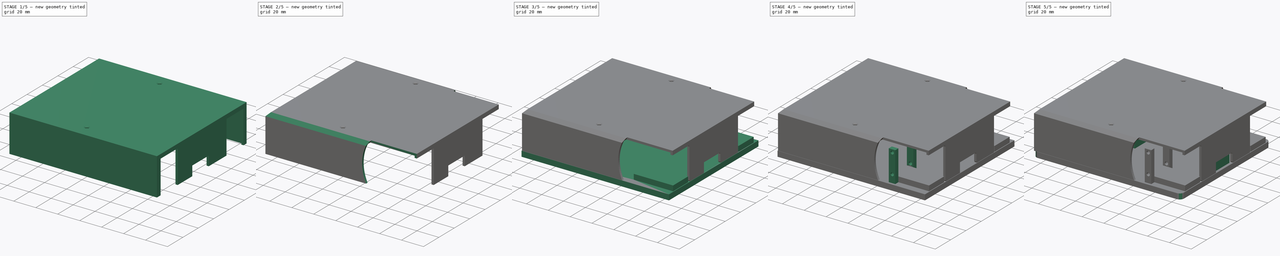
[diagram: build sequence overview — one tinted view per stage of 5, left to right]
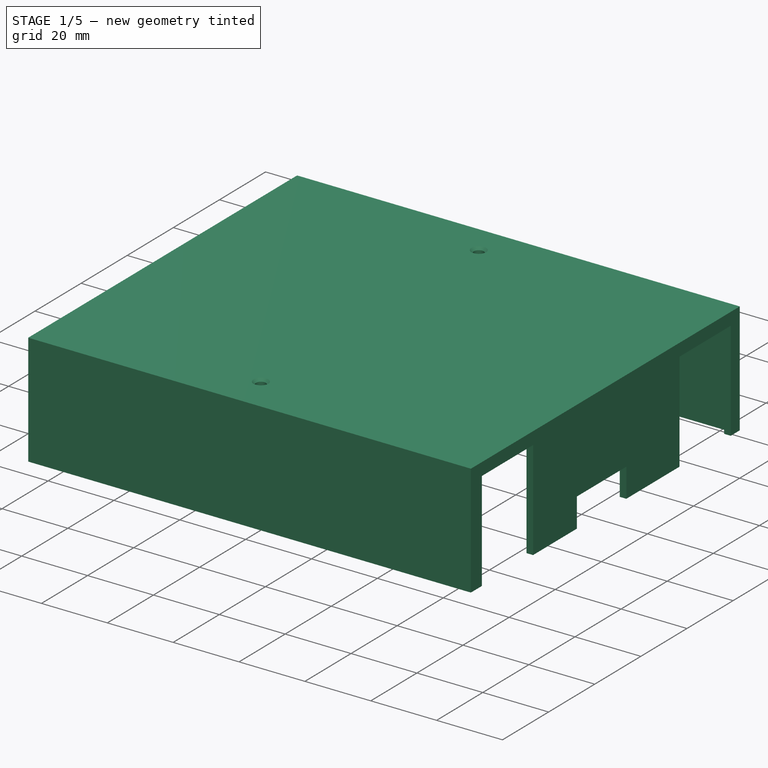
[diagram: stage 1 of 5 — iso view after this stage's code; geometry added in this stage tinted green]
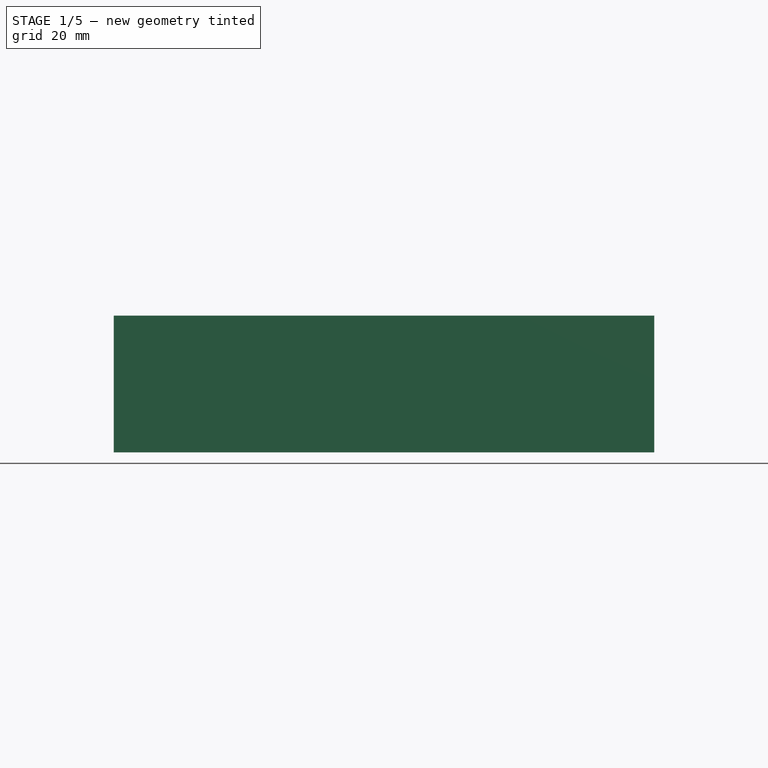
[diagram: stage 1 of 5 — front view after this stage's code; geometry added in this stage tinted green]
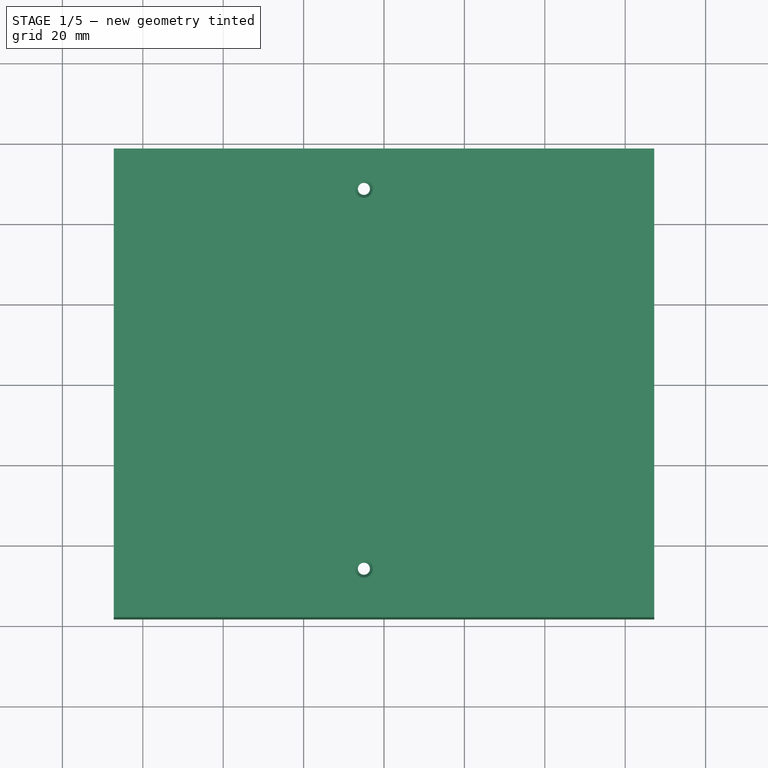
[diagram: stage 1 of 5 — top view after this stage's code; geometry added in this stage tinted green]
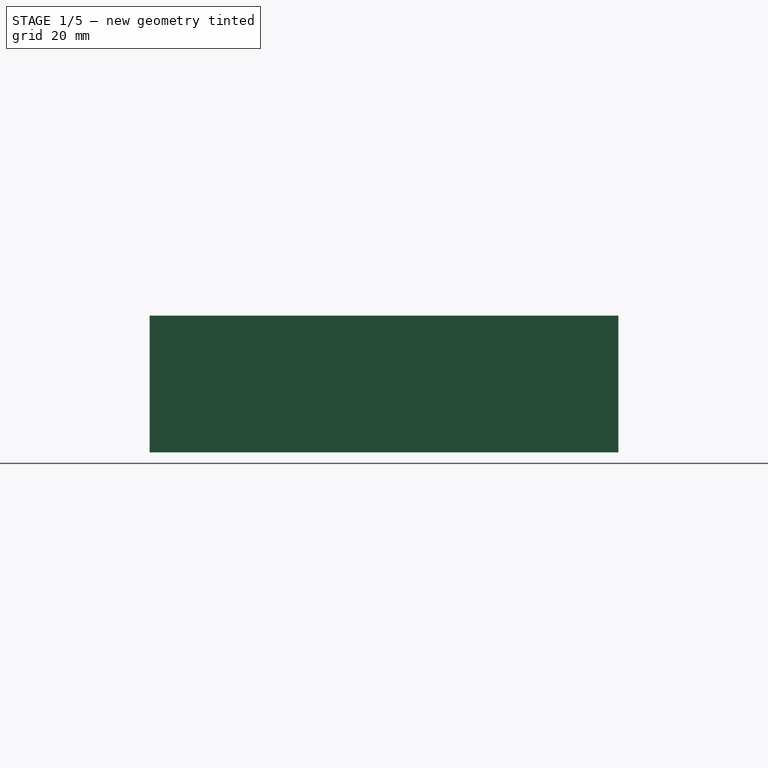
[diagram: stage 1 of 5 — right view after this stage's code; geometry added in this stage tinted green]
FCSTD DOCUMENT  (FreeCAD 0.20R29603 (Git))
Label: differential_drive_robot
License: All rights reserved
LicenseURL: http://en.wikipedia.org/wiki/All_rights_reserved
objects: Part::Feature×95, App::Part×37, Sketcher::SketchObject×15, PartDesign::Pad×10, PartDesign::Pocket×4, PartDesign::Chamfer×2, PartDesign::Body×2, PartDesign::Thickness×1, PartDesign::Hole×1, PartDesign::Fillet×1
note: 150 computed .brp shape members not serialized (recipe doc carries the construction recipe); baked Part::Feature solids carry a one-line shape summary decoded from their .brp

FEATURE [Sketcher::SketchObject] Sketch008
  FullyConstrained = false
  MapMode = 5
  Support = -> [XY_Plane039]
  sketch-geometry (4):
    g0: LineSegment StartX=-67.2159 StartY=58.3043 StartZ=0 EndX=67.2159 EndY=58.3043 EndZ=0
    g1: LineSegment StartX=67.2159 StartY=58.3043 StartZ=0 EndX=67.2159 EndY=-58.3043 EndZ=0
    g2: LineSegment StartX=67.2159 StartY=-58.3043 StartZ=0 EndX=-67.2159 EndY=-58.3043 EndZ=0
    g3: LineSegment StartX=-67.2159 StartY=-58.3043 StartZ=0 EndX=-67.2159 EndY=58.3043 EndZ=0
  constraints (9):
    c: Coincident(g0,g1)
    c: Coincident(g1,g2)
    c: Coincident(g2,g3)
    c: Coincident(g3,g0)
    c: Horizontal(g0)
    c: Horizontal(g2)
    c: Vertical(g1)
    c: Vertical(g3)
    c: Symmetric(g0,g1,g-1)
FEATURE [PartDesign::Pad] Pad008
  Direction = (0,0,1)
  Length = 34
  Length2 = 10
  Profile = -> Sketch008
  ReferenceAxis = -> Sketch008 [N_Axis]
  Type = 0
FEATURE [PartDesign::Thickness] Thickness
  Base = -> Pad008 [Face5]
  BaseFeature = -> Pad008
  Intersection = false
  Join = 0
  Mode = 0
  Reversed = true
  SupportTransform = false
  Value = 2
FEATURE [Sketcher::SketchObject] Sketch010
  FullyConstrained = false
  MapMode = 5
  Placement = pos=(0,0,34) rot=(0,0,1;0rad)
  Support = -> [Thickness]
  sketch-geometry (2):
    g0: Circle CenterX=-5 CenterY=48.2677 CenterZ=0 NormalX=0 NormalY=0 NormalZ=1 AngleXU=0 Radius=1.50963
    g1: Circle CenterX=-5 CenterY=-46.2323 CenterZ=0 NormalX=0 NormalY=0 NormalZ=1 AngleXU=0 Radius=1.51384
  constraints (3):
    c: Vertical(g1,g0)
    c: DistanceX(g0,g-1) = 5
    c: DistanceY(g1,g0) = 94.5
FEATURE [PartDesign::Hole] Hole
  BaseFeature = -> Thickness
  CustomThreadClearance = 0
  Depth = 25
  DepthType = 0
  Diameter = 3
  DrillForDepth = false
  DrillPoint = 1
  DrillPointAngle = 118
  HoleCutCountersinkAngle = 90
  HoleCutCustomValues = false
  HoleCutDepth = 0
  HoleCutDiameter = 4.5
  HoleCutType = 2
  ModelThread = false
  Profile = -> Sketch010
  Tapered = false
  TaperedAngle = 90
  ThreadClass = 0
  ThreadDepth = 25
  ThreadDepthType = 0
  ThreadDirection = 0
  ThreadFit = 0
  ThreadSize = 0
  ThreadType = 0
  Threaded = false
  UseCustomThreadClearance = false
FEATURE [Sketcher::SketchObject] Sketch011
  FullyConstrained = false
  MapMode = 5
  Placement = pos=(67.2159,0,0) rot=(0.57735,0.57735,0.57735;2.0944rad)
  Support = -> [Hole]
  sketch-geometry (12):
    g0: LineSegment StartX=32.1468 StartY=30.19 StartZ=0 EndX=54.3668 EndY=30.19 EndZ=0
    g1: LineSegment StartX=54.3668 StartY=30.19 StartZ=0 EndX=54.3668 EndY=0 EndZ=0
    g2: LineSegment StartX=54.3668 StartY=0 StartZ=0 EndX=32.1468 EndY=0 EndZ=0
    g3: LineSegment StartX=32.1468 StartY=0 StartZ=0 EndX=32.1468 EndY=30.19 EndZ=0
    g4: LineSegment StartX=-53.5661 StartY=30.19 StartZ=0 EndX=-31.3461 EndY=30.19 EndZ=0
    g5: LineSegment StartX=-31.3461 StartY=30.19 StartZ=0 EndX=-31.3461 EndY=0 EndZ=0
    g6: LineSegment StartX=-31.3461 StartY=0 StartZ=0 EndX=-53.5661 EndY=0 EndZ=0
    g7: LineSegment StartX=-53.5661 StartY=0 StartZ=0 EndX=-53.5661 EndY=30.19 EndZ=0
    g8: LineSegment StartX=-12.3673 StartY=8.8129 StartZ=0 EndX=9.09508 EndY=8.8129 EndZ=0
    g9: LineSegment StartX=9.09508 StartY=8.8129 StartZ=0 EndX=9.09508 EndY=0 EndZ=0
    g10: LineSegment StartX=9.09508 StartY=0 StartZ=0 EndX=-12.3673 EndY=0 EndZ=0
    g11: LineSegment StartX=-12.3673 StartY=0 StartZ=0 EndX=-12.3673 EndY=8.8129 EndZ=0
  constraints (31):
    c: Coincident(g0,g1)
    c: Coincident(g1,g2)
    c: Coincident(g2,g3)
    c: Coincident(g3,g0)
    c: Horizontal(g0)
    c: Horizontal(g2)
    c: Vertical(g1)
    c: Vertical(g3)
    c: PointOnObject(g1,g-1)
    c: DistanceX(g0,g0) = 22.22
    c: DistanceY(g1,g1) = 30.19
    c: Coincident(g4,g5)
    c: Coincident(g5,g6)
    c: Coincident(g6,g7)
    c: Coincident(g7,g4)
    c: Horizontal(g4)
    c: Horizontal(g6)
    c: Vertical(g5)
    c: Vertical(g7)
    c: Equal(g0,g4) = 22.22
    c: Equal(g1,g5) = 30.19
    c: PointOnObject(g7,g-1)
    c: Coincident(g8,g9)
    c: Coincident(g9,g10)
    c: Coincident(g10,g11)
    c: Coincident(g11,g8)
    c: Horizontal(g8)
    c: Horizontal(g10)
    c: Vertical(g9)
    c: Vertical(g11)
    c: PointOnObject(g9,g-1)
FEATURE [PartDesign::Pocket] Pocket
  BaseFeature = -> Hole
  Direction = (-1,0,0)
  Length = 5
  Length2 = 5
  Profile = -> Sketch011
  ReferenceAxis = -> Sketch011 [N_Axis]
  Type = 0
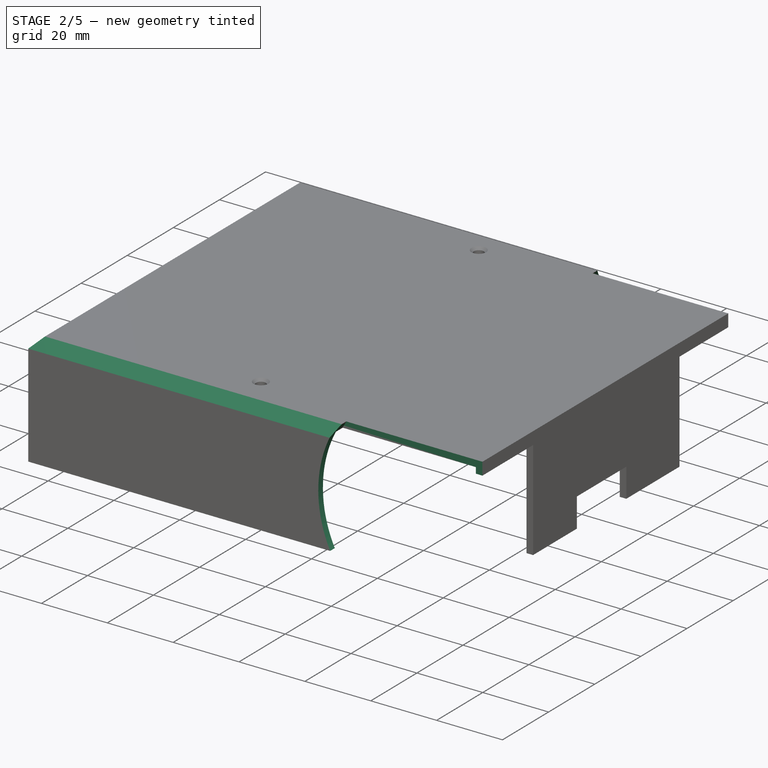
[diagram: stage 2 of 5 — iso view after this stage's code; geometry added in this stage tinted green]
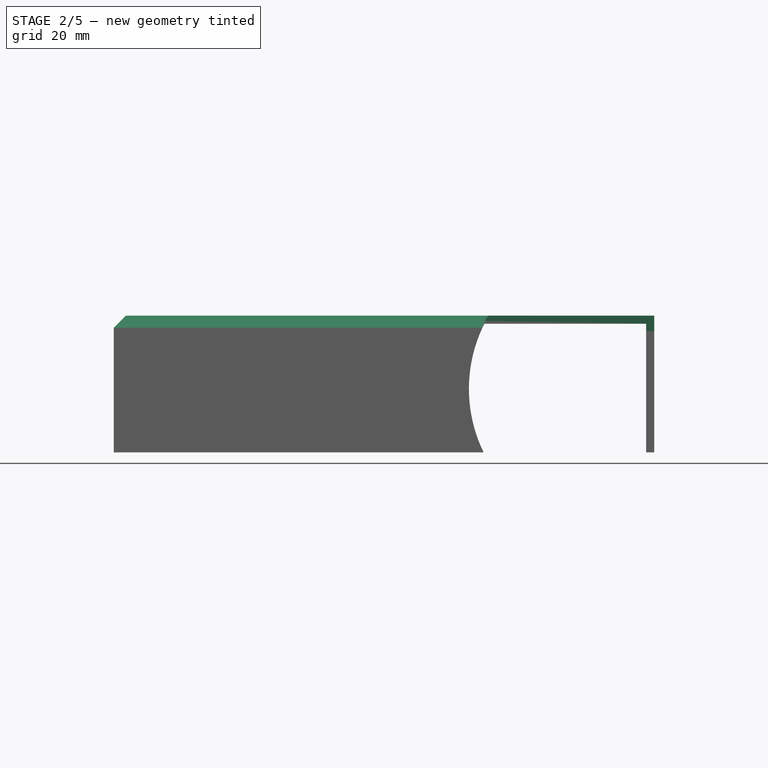
[diagram: stage 2 of 5 — front view after this stage's code; geometry added in this stage tinted green]
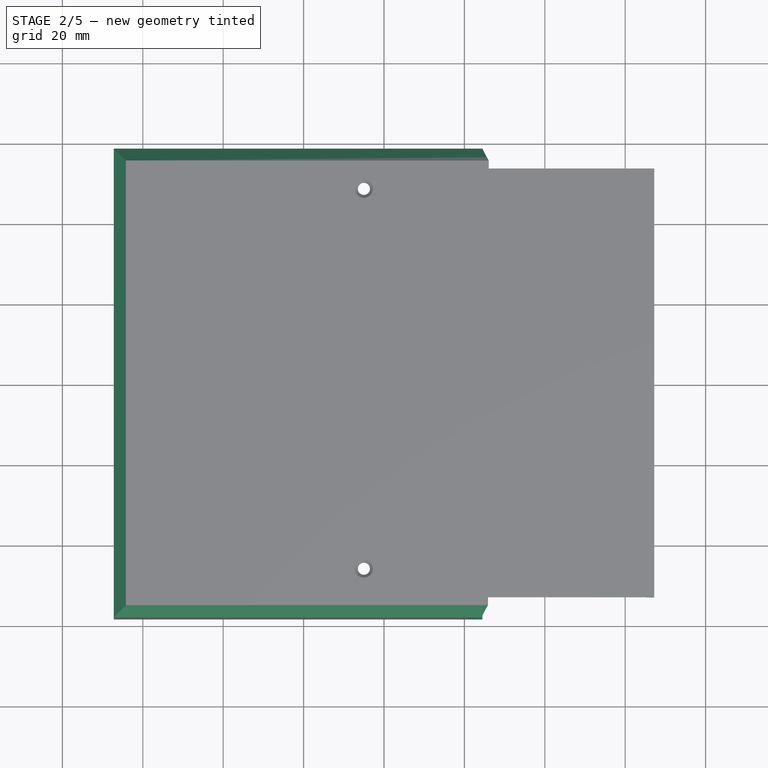
[diagram: stage 2 of 5 — top view after this stage's code; geometry added in this stage tinted green]
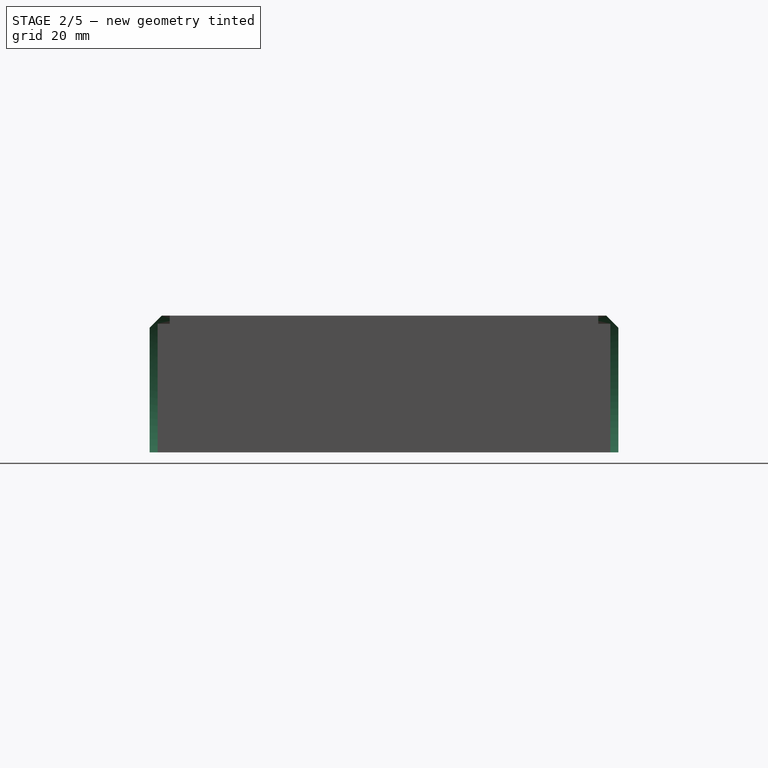
[diagram: stage 2 of 5 — right view after this stage's code; geometry added in this stage tinted green]
FEATURE [Sketcher::SketchObject] Sketch012
  FullyConstrained = false
  MapMode = 5
  Placement = pos=(0,58.3043,0) rot=(0,0.707107,0.707107;3.14159rad)
  Support = -> [Pocket]
  sketch-geometry (1):
    g0: Circle CenterX=-57.1216 CenterY=15.81 CenterZ=0 NormalX=0 NormalY=0 NormalZ=1 AngleXU=0 Radius=36
  constraints (1):
    c: Diameter(g0) = 72
FEATURE [PartDesign::Pocket] Pocket001
  BaseFeature = -> Pocket
  Direction = (0,-1,2e-16)
  Length = 5
  Length2 = 5
  Profile = -> Sketch012
  ReferenceAxis = -> Sketch012 [N_Axis]
  Type = 0
FEATURE [Sketcher::SketchObject] Sketch013
  FullyConstrained = false
  MapMode = 5
  Placement = pos=(0,-58.3043,0) rot=(1,0,0;1.5708rad)
  Support = -> [Pocket001]
  sketch-geometry (1):
    g0: Circle CenterX=56.8713 CenterY=15.6967 CenterZ=0 NormalX=0 NormalY=0 NormalZ=1 AngleXU=0 Radius=36
  constraints (1):
    c: Diameter(g0) = 72
FEATURE [PartDesign::Pocket] Pocket002
  BaseFeature = -> Pocket001
  Direction = (0,1,-2e-16)
  Length = 5
  Length2 = 5
  Profile = -> Sketch013
  ReferenceAxis = -> Sketch013 [N_Axis]
  Type = 0
FEATURE [PartDesign::Chamfer] Chamfer
  Angle = 45
  Base = -> Pocket002 [Edge23,Edge24,Edge4]
  BaseFeature = -> Pocket002
  ChamferType = 0
  FlipDirection = false
  Size = 3
  Size2 = 1
  SupportTransform = false
  UseAllEdges = false
FEATURE [PartDesign::Body] Body  label="Base"
  Group = -> [Sketch,Pad,Sketch001,Pad001,Sketch002,Pad002,Sketch003,Pad003,Sketch004,Pad004,Sketch005,Pad005,Sketch006,Pad006,Sketch007,Pad007,Sketch009,Pad009,Fillet]
  Origin = -> Origin038
  Placement = pos=(0,0,-5) rot=(0,0,1;0rad)
  Tip = -> Fillet
FEATURE [Sketcher::SketchObject] Sketch015
  FullyConstrained = false
  MapMode = 5
  Placement = pos=(0,58.3043,0) rot=(0,0.707107,0.707107;3.14159rad)
  Support = -> [Chamfer]
  sketch-geometry (4):
    g0: LineSegment StartX=-0.385074 StartY=28.0714 StartZ=0 EndX=11.2149 EndY=28.0714 EndZ=0
    g1: LineSegment StartX=11.2149 StartY=28.0714 StartZ=0 EndX=11.2149 EndY=7.47139 EndZ=0
    g2: LineSegment StartX=11.2149 StartY=7.47139 StartZ=0 EndX=-0.385074 EndY=7.47139 EndZ=0
    g3: LineSegment StartX=-0.385074 StartY=7.47139 StartZ=0 EndX=-0.385074 EndY=28.0714 EndZ=0
  constraints (10):
    c: Coincident(g0,g1)
    c: Coincident(g1,g2)
    c: Coincident(g2,g3)
    c: Coincident(g3,g0)
    c: Horizontal(g0)
    c: Horizontal(g2)
    c: Vertical(g1)
    c: Vertical(g3)
    c: DistanceX(g2,g2) = 11.6
    c: DistanceY(g1,g1) = 20.6
FEATURE [PartDesign::Pocket] Pocket003
  BaseFeature = -> Chamfer
  Direction = (0,-1,2e-16)
  Length = 5
  Length2 = 5
  Profile = -> Sketch015
  ReferenceAxis = -> Sketch015 [N_Axis]
  Type = 0
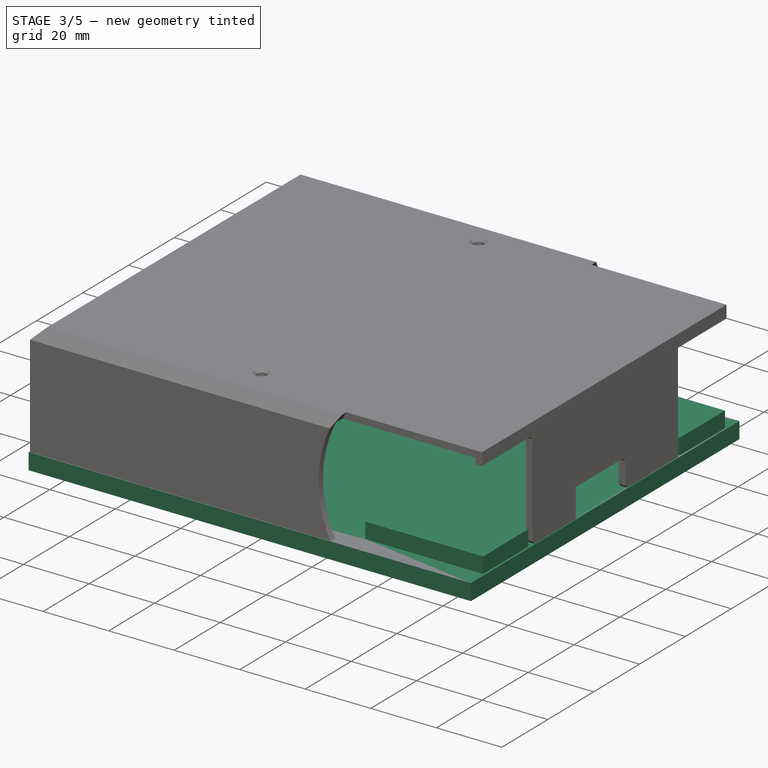
[diagram: stage 3 of 5 — iso view after this stage's code; geometry added in this stage tinted green]
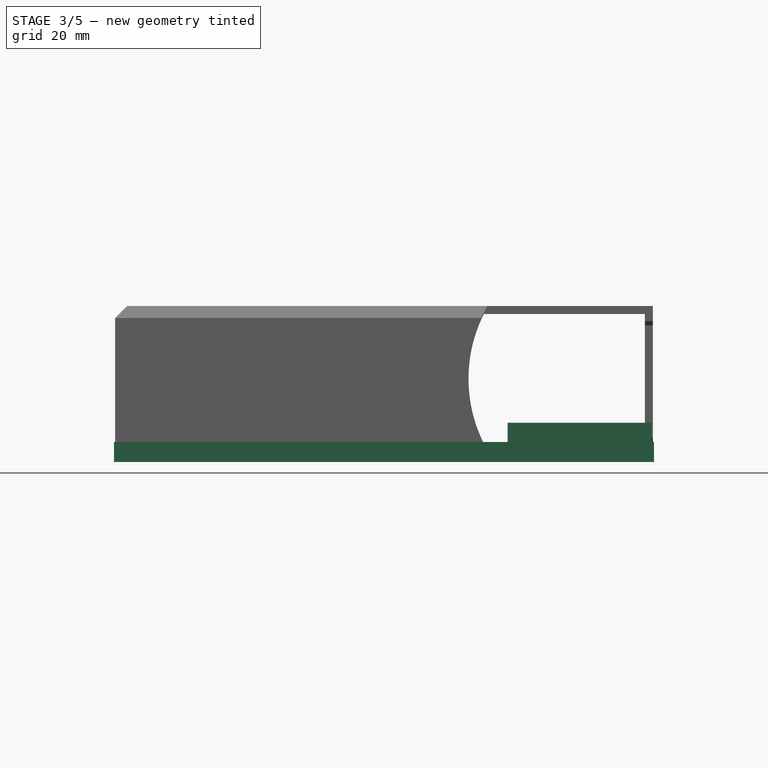
[diagram: stage 3 of 5 — front view after this stage's code; geometry added in this stage tinted green]
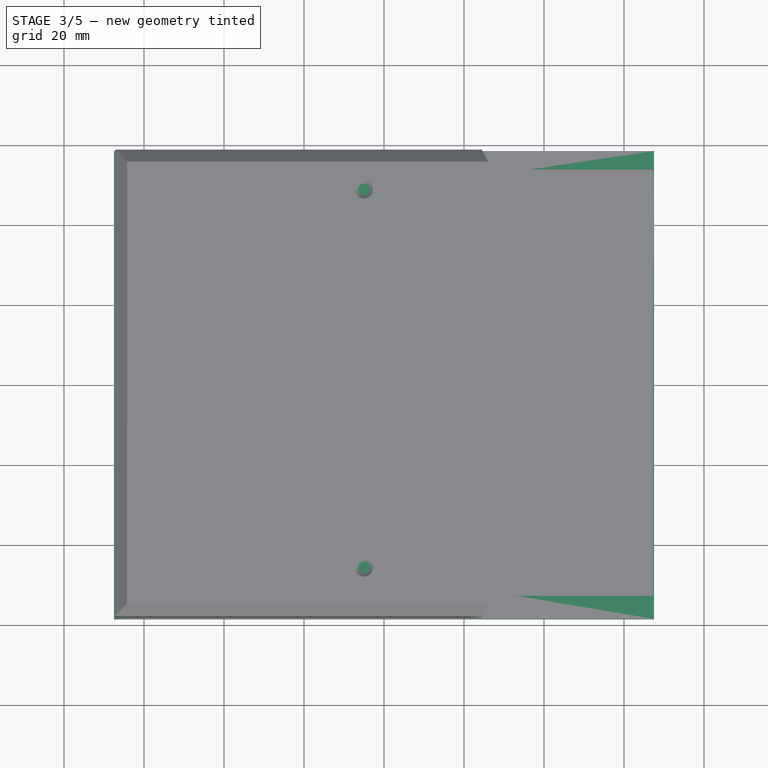
[diagram: stage 3 of 5 — top view after this stage's code; geometry added in this stage tinted green]
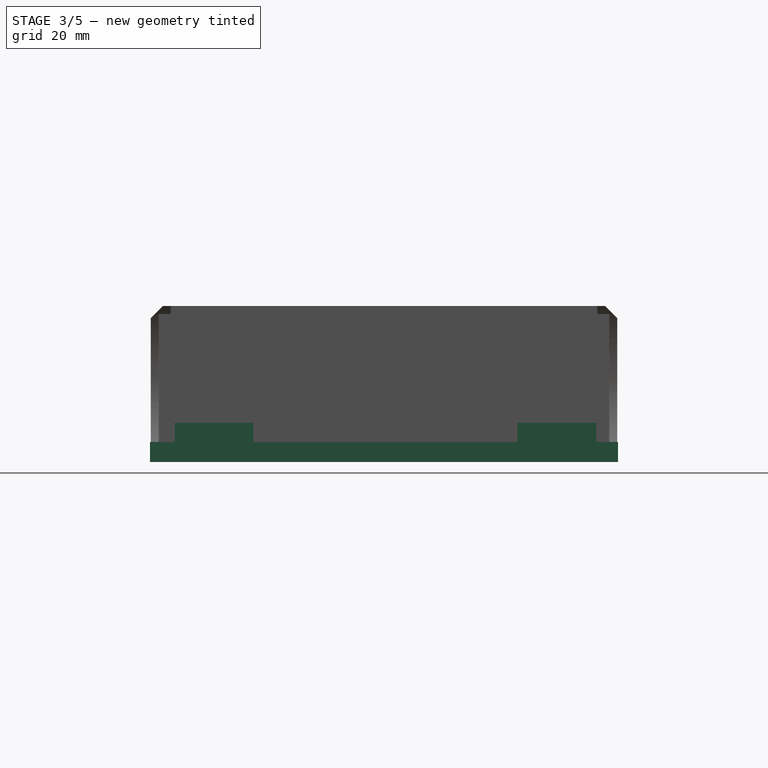
[diagram: stage 3 of 5 — right view after this stage's code; geometry added in this stage tinted green]
FEATURE [Part::Feature] Part__Feature  label="Wheel''s Body"
  shape: bbox 47.66 x 8.6 x 34.64 mm, 44 faces (baked)
FEATURE [Part::Feature] Part__Feature001  label="Ball"
  Placement = pos=(0,8.6,0) rot=(-0.091977,0.685264,-0.722464;0.516972rad)
  shape: bbox 14 x 14 x 14 mm, 2 faces (baked)
FEATURE [App::Part] Caster_Ball_Wheel  label="Caster Ball Wheel"
  Group = -> [Part__Feature,Part__Feature001]
  Origin = -> Origin002
  Placement = pos=(-51.24,0.14,-10) rot=(0.57735,0.57735,-0.57735;4.18879rad)
FEATURE [Part::Feature] Part__Feature002  label="cell"
  Placement = pos=(0,0,0) rot=(-1,0,0;1.5708rad)
  shape: bbox 19.5 x 65.01 x 19.5 mm, 44 faces, 4 solids (baked)
FEATURE [Part::Feature] Part__Feature003  label="PCB"
  Placement = pos=(0,0,0) rot=(0.707107,0,0.707107;3.14159rad)
  shape: bbox 28.15 x 51.5 x 1.6 mm, 82 faces (baked)
FEATURE [Part::Feature] Part__Feature004  label="SOLID"
  shape: bbox 2.545 x 13.54 x 2.5 mm, 61 faces (baked)
FEATURE [Part::Feature] Part__Feature005  label="COMPOUND"
  shape: bbox 2e-07 x 13.54 x 2e-07 mm, 0 faces, 0 solids (baked)
FEATURE [App::Part] PIN
  Group = -> [Part__Feature004,Part__Feature005]
  Origin = -> Origin003
  Placement = pos=(12.7,-8.03,0) rot=(0.57735,0.57735,-0.57735;4.18879rad)
FEATURE [Part::Feature] Part__Feature006  label="SOLID001"
  shape: bbox 2.545 x 13.54 x 2.5 mm, 61 faces (baked)
FEATURE [Part::Feature] Part__Feature007  label="COMPOUND001"
  shape: bbox 2e-07 x 13.54 x 2e-07 mm, 0 faces, 0 solids (baked)
FEATURE [App::Part] PIN001
  Group = -> [Part__Feature006,Part__Feature007]
  Origin = -> Origin004
  Placement = pos=(12.7,-5.49,0) rot=(0.57735,0.57735,-0.57735;4.18879rad)
FEATURE [Part::Feature] Part__Feature008  label="SOLID002"
  shape: bbox 2.545 x 13.54 x 2.5 mm, 61 faces (baked)
FEATURE [Part::Feature] Part__Feature009  label="COMPOUND002"
  shape: bbox 2e-07 x 13.54 x 2e-07 mm, 0 faces, 0 solids (baked)
FEATURE [App::Part] PIN002
  Group = -> [Part__Feature008,Part__Feature009]
  Origin = -> Origin005
  Placement = pos=(12.7,-2.95,0) rot=(0.57735,0.57735,-0.57735;4.18879rad)
FEATURE [Part::Feature] Part__Feature010  label="SOLID003"
  shape: bbox 2.545 x 13.54 x 2.5 mm, 61 faces (baked)
FEATURE [Part::Feature] Part__Feature011  label="COMPOUND003"
  shape: bbox 2e-07 x 13.54 x 2e-07 mm, 0 faces, 0 solids (baked)
FEATURE [App::Part] PIN003
  Group = -> [Part__Feature010,Part__Feature011]
  Origin = -> Origin006
  Placement = pos=(12.7,-0.41,0) rot=(0.57735,0.57735,-0.57735;4.18879rad)
FEATURE [Part::Feature] Part__Feature012  label="SOLID004"
  shape: bbox 2.545 x 13.54 x 2.5 mm, 61 faces (baked)
FEATURE [Part::Feature] Part__Feature013  label="COMPOUND004"
  shape: bbox 2e-07 x 13.54 x 2e-07 mm, 0 faces, 0 solids (baked)
FEATURE [App::Part] PIN004
  Group = -> [Part__Feature012,Part__Feature013]
  Origin = -> Origin007
  Placement = pos=(12.7,2.13,0) rot=(0.57735,0.57735,-0.57735;4.18879rad)
FEATURE [Part::Feature] Part__Feature014  label="SOLID005"
  shape: bbox 2.545 x 13.54 x 2.5 mm, 61 faces (baked)
FEATURE [Part::Feature] Part__Feature015  label="COMPOUND005"
  shape: bbox 2e-07 x 13.54 x 2e-07 mm, 0 faces, 0 solids (baked)
FEATURE [App::Part] PIN005
  Group = -> [Part__Feature014,Part__Feature015]
  Origin = -> Origin008
  Placement = pos=(12.7,4.67,0) rot=(0.57735,0.57735,-0.57735;4.18879rad)
FEATURE [Part::Feature] Part__Feature016  label="SOLID006"
  shape: bbox 2.545 x 13.54 x 2.5 mm, 61 faces (baked)
FEATURE [Part::Feature] Part__Feature017  label="COMPOUND006"
  shape: bbox 2e-07 x 13.54 x 2e-07 mm, 0 faces, 0 solids (baked)
FEATURE [App::Part] PIN006
  Group = -> [Part__Feature016,Part__Feature017]
  Origin = -> Origin009
  Placement = pos=(12.7,7.21,0) rot=(0.57735,0.57735,-0.57735;4.18879rad)
FEATURE [Part::Feature] Part__Feature018  label="SOLID007"
  shape: bbox 2.545 x 13.54 x 2.5 mm, 61 faces (baked)
FEATURE [Part::Feature] Part__Feature019  label="COMPOUND007"
  shape: bbox 2e-07 x 13.54 x 2e-07 mm, 0 faces, 0 solids (baked)
FEATURE [App::Part] PIN007
  Group = -> [Part__Feature018,Part__Feature019]
  Origin = -> Origin010
  Placement = pos=(12.7,9.75,0) rot=(0.57735,0.57735,-0.57735;4.18879rad)
FEATURE [Part::Feature] Part__Feature020  label="SOLID008"
  shape: bbox 2.545 x 13.54 x 2.5 mm, 61 faces (baked)
FEATURE [Part::Feature] Part__Feature021  label="COMPOUND008"
  shape: bbox 2e-07 x 13.54 x 2e-07 mm, 0 faces, 0 solids (baked)
FEATURE [App::Part] PIN008
  Group = -> [Part__Feature020,Part__Feature021]
  Origin = -> Origin011
  Placement = pos=(12.7,12.29,0) rot=(0.57735,0.57735,-0.57735;4.18879rad)
FEATURE [Part::Feature] Part__Feature022  label="SOLID009"
  shape: bbox 2.545 x 13.54 x 2.5 mm, 61 faces (baked)
FEATURE [Part::Feature] Part__Feature023  label="COMPOUND009"
  shape: bbox 2e-07 x 13.54 x 2e-07 mm, 0 faces, 0 solids (baked)
FEATURE [App::Part] PIN009
  Group = -> [Part__Feature022,Part__Feature023]
  Origin = -> Origin012
  Placement = pos=(12.7,14.83,0) rot=(0.57735,0.57735,-0.57735;4.18879rad)
FEATURE [Part::Feature] Part__Feature024  label="SOLID010"
  shape: bbox 2.545 x 13.54 x 2.5 mm, 61 faces (baked)
FEATURE [Part::Feature] Part__Feature025  label="COMPOUND010"
  shape: bbox 2e-07 x 13.54 x 2e-07 mm, 0 faces, 0 solids (baked)
FEATURE [App::Part] PIN010
  Group = -> [Part__Feature024,Part__Feature025]
  Origin = -> Origin013
  Placement = pos=(12.7,17.37,0) rot=(0.57735,0.57735,-0.57735;4.18879rad)
FEATURE [Part::Feature] Part__Feature026  label="SOLID011"
  shape: bbox 2.545 x 13.54 x 2.5 mm, 61 faces (baked)
FEATURE [Part::Feature] Part__Feature027  label="COMPOUND011"
  shape: bbox 2e-07 x 13.54 x 2e-07 mm, 0 faces, 0 solids (baked)
FEATURE [App::Part] PIN011
  Group = -> [Part__Feature026,Part__Feature027]
  Origin = -> Origin014
  Placement = pos=(12.7,19.91,0) rot=(0.57735,0.57735,-0.57735;4.18879rad)
FEATURE [Part::Feature] Part__Feature028  label="SOLID012"
  shape: bbox 2.545 x 13.54 x 2.5 mm, 61 faces (baked)
FEATURE [Part::Feature] Part__Feature029  label="COMPOUND012"
  shape: bbox 2e-07 x 13.54 x 2e-07 mm, 0 faces, 0 solids (baked)
FEATURE [App::Part] PIN012
  Group = -> [Part__Feature028,Part__Feature029]
  Origin = -> Origin015
  Placement = pos=(12.7,22.45,0) rot=(0.57735,0.57735,-0.57735;4.18879rad)
FEATURE [Part::Feature] Part__Feature030  label="SOLID013"
  shape: bbox 2.545 x 13.54 x 2.5 mm, 61 faces (baked)
FEATURE [Part::Feature] Part__Feature031  label="COMPOUND013"
  shape: bbox 2e-07 x 13.54 x 2e-07 mm, 0 faces, 0 solids (baked)
FEATURE [App::Part] PIN013
  Group = -> [Part__Feature030,Part__Feature031]
  Origin = -> Origin016
  Placement = pos=(12.7,24.99,0) rot=(0.57735,0.57735,-0.57735;4.18879rad)
FEATURE [Part::Feature] Part__Feature032  label="SOLID014"
  shape: bbox 2.545 x 13.54 x 2.5 mm, 61 faces (baked)
FEATURE [Part::Feature] Part__Feature033  label="COMPOUND014"
  shape: bbox 2e-07 x 13.54 x 2e-07 mm, 0 faces, 0 solids (baked)
FEATURE [App::Part] PIN014
  Group = -> [Part__Feature032,Part__Feature033]
  Origin = -> Origin017
  Placement = pos=(12.7,27.53,0) rot=(0.57735,0.57735,-0.57735;4.18879rad)
FEATURE [Part::Feature] Part__Feature034  label="SOLID015"
  shape: bbox 2.545 x 13.54 x 2.5 mm, 61 faces (baked)
FEATURE [Part::Feature] Part__Feature035  label="COMPOUND015"
  shape: bbox 2e-07 x 13.54 x 2e-07 mm, 0 faces, 0 solids (baked)
FEATURE [App::Part] PIN015
  Group = -> [Part__Feature034,Part__Feature035]
  Origin = -> Origin018
  Placement = pos=(-12.7,27.53,0) rot=(0.57735,-0.57735,0.57735;4.18879rad)
FEATURE [Part::Feature] Part__Feature036  label="SOLID016"
  shape: bbox 2.545 x 13.54 x 2.5 mm, 61 faces (baked)
FEATURE [Part::Feature] Part__Feature037  label="COMPOUND016"
  shape: bbox 2e-07 x 13.54 x 2e-07 mm, 0 faces, 0 solids (baked)
FEATURE [App::Part] PIN016
  Group = -> [Part__Feature036,Part__Feature037]
  Origin = -> Origin019
  Placement = pos=(-12.7,30.07,0) rot=(0.57735,-0.57735,0.57735;4.18879rad)
FEATURE [Part::Feature] Part__Feature038  label="SOLID017"
  shape: bbox 2.545 x 13.54 x 2.5 mm, 61 faces (baked)
FEATURE [Part::Feature] Part__Feature039  label="COMPOUND017"
  shape: bbox 2e-07 x 13.54 x 2e-07 mm, 0 faces, 0 solids (baked)
FEATURE [App::Part] PIN017
  Group = -> [Part__Feature038,Part__Feature039]
  Origin = -> Origin020
  Placement = pos=(-12.7,32.61,0) rot=(0.57735,-0.57735,0.57735;4.18879rad)
FEATURE [Part::Feature] Part__Feature040  label="SOLID018"
  shape: bbox 2.545 x 13.54 x 2.5 mm, 61 faces (baked)
FEATURE [Part::Feature] Part__Feature041  label="COMPOUND018"
  shape: bbox 2e-07 x 13.54 x 2e-07 mm, 0 faces, 0 solids (baked)
FEATURE [App::Part] PIN018
  Group = -> [Part__Feature040,Part__Feature041]
  Origin = -> Origin021
  Placement = pos=(-12.7,35.15,0) rot=(0.57735,-0.57735,0.57735;4.18879rad)
FEATURE [Part::Feature] Part__Feature042  label="SOLID019"
  shape: bbox 2.545 x 13.54 x 2.5 mm, 61 faces (baked)
FEATURE [Part::Feature] Part__Feature043  label="COMPOUND019"
  shape: bbox 2e-07 x 13.54 x 2e-07 mm, 0 faces, 0 solids (baked)
FEATURE [App::Part] PIN019
  Group = -> [Part__Feature042,Part__Feature043]
  Origin = -> Origin022
  Placement = pos=(-12.7,37.69,0) rot=(0.57735,-0.57735,0.57735;4.18879rad)
FEATURE [Part::Feature] Part__Feature044  label="SOLID020"
  shape: bbox 2.545 x 13.54 x 2.5 mm, 61 faces (baked)
FEATURE [Part::Feature] Part__Feature045  label="COMPOUND020"
  shape: bbox 2e-07 x 13.54 x 2e-07 mm, 0 faces, 0 solids (baked)
FEATURE [App::Part] PIN020
  Group = -> [Part__Feature044,Part__Feature045]
  Origin = -> Origin023
  Placement = pos=(-12.7,40.23,0) rot=(0.57735,-0.57735,0.57735;4.18879rad)
FEATURE [Part::Feature] Part__Feature046  label="SOLID021"
  shape: bbox 2.545 x 13.54 x 2.5 mm, 61 faces (baked)
FEATURE [Part::Feature] Part__Feature047  label="COMPOUND021"
  shape: bbox 2e-07 x 13.54 x 2e-07 mm, 0 faces, 0 solids (baked)
FEATURE [App::Part] PIN021
  Group = -> [Part__Feature046,Part__Feature047]
  Origin = -> Origin024
  Placement = pos=(-12.7,42.77,0) rot=(0.57735,-0.57735,0.57735;4.18879rad)
FEATURE [Part::Feature] Part__Feature048  label="SOLID022"
  shape: bbox 2.545 x 13.54 x 2.5 mm, 61 faces (baked)
FEATURE [Part::Feature] Part__Feature049  label="COMPOUND022"
  shape: bbox 2e-07 x 13.54 x 2e-07 mm, 0 faces, 0 solids (baked)
FEATURE [App::Part] PIN022
  Group = -> [Part__Feature048,Part__Feature049]
  Origin = -> Origin025
  Placement = pos=(-12.7,45.31,0) rot=(0.57735,-0.57735,0.57735;4.18879rad)
FEATURE [Part::Feature] Part__Feature050  label="SOLID023"
  shape: bbox 2.545 x 13.54 x 2.5 mm, 61 faces (baked)
FEATURE [Part::Feature] Part__Feature051  label="COMPOUND023"
  shape: bbox 2e-07 x 13.54 x 2e-07 mm, 0 faces, 0 solids (baked)
FEATURE [App::Part] PIN023
  Group = -> [Part__Feature050,Part__Feature051]
  Origin = -> Origin026
  Placement = pos=(-12.7,47.85,0) rot=(0.57735,-0.57735,0.57735;4.18879rad)
FEATURE [Part::Feature] Part__Feature052  label="SOLID024"
  shape: bbox 2.545 x 13.54 x 2.5 mm, 61 faces (baked)
FEATURE [Part::Feature] Part__Feature053  label="COMPOUND024"
  shape: bbox 2e-07 x 13.54 x 2e-07 mm, 0 faces, 0 solids (baked)
FEATURE [App::Part] PIN024
  Group = -> [Part__Feature052,Part__Feature053]
  Origin = -> Origin027
  Placement = pos=(-12.7,50.39,0) rot=(0.57735,-0.57735,0.57735;4.18879rad)
FEATURE [Part::Feature] Part__Feature054  label="SOLID025"
  shape: bbox 2.545 x 13.54 x 2.5 mm, 61 faces (baked)
FEATURE [Part::Feature] Part__Feature055  label="COMPOUND025"
  shape: bbox 2e-07 x 13.54 x 2e-07 mm, 0 faces, 0 solids (baked)
FEATURE [App::Part] PIN025
  Group = -> [Part__Feature054,Part__Feature055]
  Origin = -> Origin028
  Placement = pos=(-12.7,52.93,0) rot=(0.57735,-0.57735,0.57735;4.18879rad)
FEATURE [Part::Feature] Part__Feature056  label="SOLID026"
  shape: bbox 2.545 x 13.54 x 2.5 mm, 61 faces (baked)
FEATURE [Part::Feature] Part__Feature057  label="COMPOUND026"
  shape: bbox 2e-07 x 13.54 x 2e-07 mm, 0 faces, 0 solids (baked)
FEATURE [App::Part] PIN026
  Group = -> [Part__Feature056,Part__Feature057]
  Origin = -> Origin029
  Placement = pos=(-12.7,55.47,0) rot=(0.57735,-0.57735,0.57735;4.18879rad)
FEATURE [Part::Feature] Part__Feature058  label="SOLID027"
  shape: bbox 2.545 x 13.54 x 2.5 mm, 61 faces (baked)
FEATURE [Part::Feature] Part__Feature059  label="COMPOUND027"
  shape: bbox 2e-07 x 13.54 x 2e-07 mm, 0 faces, 0 solids (baked)
FEATURE [App::Part] PIN027
  Group = -> [Part__Feature058,Part__Feature059]
  Origin = -> Origin030
  Placement = pos=(-12.7,58.01,0) rot=(0.57735,-0.57735,0.57735;4.18879rad)
FEATURE [Part::Feature] Part__Feature060  label="SOLID028"
  shape: bbox 2.545 x 13.54 x 2.5 mm, 61 faces (baked)
FEATURE [Part::Feature] Part__Feature061  label="COMPOUND028"
  shape: bbox 2e-07 x 13.54 x 2e-07 mm, 0 faces, 0 solids (baked)
FEATURE [App::Part] PIN028
  Group = -> [Part__Feature060,Part__Feature061]
  Origin = -> Origin031
  Placement = pos=(-12.7,60.55,0) rot=(0.57735,-0.57735,0.57735;4.18879rad)
FEATURE [Part::Feature] Part__Feature062  label="SOLID029"
  shape: bbox 2.545 x 13.54 x 2.5 mm, 61 faces (baked)
FEATURE [Part::Feature] Part__Feature063  label="COMPOUND029"
  shape: bbox 2e-07 x 13.54 x 2e-07 mm, 0 faces, 0 solids (baked)
FEATURE [App::Part] PIN029
  Group = -> [Part__Feature062,Part__Feature063]
  Origin = -> Origin032
  Placement = pos=(-12.7,63.09,0) rot=(0.57735,-0.57735,0.57735;4.18879rad)
FEATURE [Part::Feature] Part__Feature064  label="WIFI_CARD_2"
  Placement = pos=(0,27.175,-0.055) rot=(1,0,0;1.5708rad)
  shape: bbox 16 x 24 x 2.812 mm, 339 faces (baked)
FEATURE [Part::Feature] Part__Feature065  label="RECTANGULARCHIP_2"
  Placement = pos=(-3.825,8.35,-0.051) rot=(0,0.707107,0.707107;3.14159rad)
  shape: bbox 7.45 x 6 x 1.65 mm, 41 faces (baked)
FEATURE [Part::Feature] Part__Feature066  label="MICROCHIP_2"
  Placement = pos=(4.825,26.75,-0.052) rot=(1,0,0;1.5708rad)
  shape: bbox 6.2 x 6.2 x 1 mm, 118 faces (baked)
FEATURE [Part::Feature] Part__Feature067  label="TANCHIP_2"
  Placement = pos=(-1.725,10.65,-0.052) rot=(0.57735,-0.57735,-0.57735;2.0944rad)
  shape: bbox 4.966 x 2.9 x 2 mm, 28 faces (baked)
FEATURE [Part::Feature] Part__Feature068  label="TRANSISTOR_3-LEG_2"
  Placement = pos=(0.025,10.5,-0.052) rot=(0.57735,0.57735,0.57735;2.0944rad)
  shape: bbox 2.302 x 3 x 0.7675 mm, 93 faces (baked)
FEATURE [Part::Feature] Part__Feature069  label="RESISTOR1_2"
  Placement = pos=(-5.125,26,-0.051) rot=(0.57735,0.57735,0.57735;2.0944rad)
  shape: bbox 1.007 x 2.222 x 0.4165 mm, 64 faces (baked)
FEATURE [Part::Feature] Part__Feature070  label="RESISTOR1_003"
  Placement = pos=(-3.375,26,-0.051) rot=(0.57735,0.57735,0.57735;2.0944rad)
  shape: bbox 1.007 x 2.222 x 0.4165 mm, 64 faces (baked)
FEATURE [Part::Feature] Part__Feature071  label="RESISTOR1_004"
  Placement = pos=(-1.625,26,-0.051) rot=(0.57735,0.57735,0.57735;2.0944rad)
  shape: bbox 1.007 x 2.222 x 0.4165 mm, 64 faces (baked)
FEATURE [Part::Feature] Part__Feature072  label="RESISTOR1_005"
  Placement = pos=(0.125,26,-0.051) rot=(0.57735,0.57735,0.57735;2.0944rad)
  shape: bbox 1.007 x 2.222 x 0.4165 mm, 64 faces (baked)
FEATURE [Part::Feature] Part__Feature073  label="RESISTOR1_006"
  Placement = pos=(1.875,26,-0.051) rot=(0.57735,0.57735,0.57735;2.0944rad)
  shape: bbox 1.007 x 2.222 x 0.4165 mm, 64 faces (baked)
FEATURE [Part::Feature] Part__Feature074  label="RESISTOR2-32_2"
  Placement = pos=(3.825,31.3,-0.051) rot=(1,0,0;1.5708rad)
  shape: bbox 1.007 x 2.222 x 0.4165 mm, 64 faces (baked)
FEATURE [Part::Feature] Part__Feature075  label="RESISTOR2-32_003"
  Placement = pos=(-6.675,31.3,-0.051) rot=(1,0,0;1.5708rad)
  shape: bbox 1.007 x 2.222 x 0.4165 mm, 64 faces (baked)
FEATURE [Part::Feature] Part__Feature076  label="RESISTOR1_007"
  Placement = pos=(11.575,23,-0.051) rot=(1,0,0;1.5708rad)
  shape: bbox 2.222 x 1.007 x 0.4165 mm, 64 faces (baked)
FEATURE [Part::Feature] Part__Feature077  label="RESISTOR1_008"
  Placement = pos=(11.575,24.2,-0.051) rot=(1,0,0;1.5708rad)
  shape: bbox 2.222 x 1.007 x 0.4165 mm, 64 faces (baked)
FEATURE [Part::Feature] Part__Feature078  label="RESISTOR1_009"
  Placement = pos=(-3.625,23,-0.051) rot=(1,0,0;1.5708rad)
  shape: bbox 2.222 x 1.007 x 0.4165 mm, 64 faces (baked)
FEATURE [Part::Feature] Part__Feature079  label="RESISTOR1_010"
  Placement = pos=(-3.625,24.2,-0.051) rot=(1,0,0;1.5708rad)
  shape: bbox 2.222 x 1.007 x 0.4165 mm, 64 faces (baked)
FEATURE [Part::Feature] Part__Feature080  label="TRANSISTOR_3-LEG2_2"
  Placement = pos=(-12.335,10.54,-0.052) rot=(0.57735,0.57735,0.57735;2.0944rad)
  shape: bbox 2.302 x 3 x 0.7675 mm, 93 faces (baked)
FEATURE [Part::Feature] Part__Feature081  label="RESISTOR1_011"
  Placement = pos=(7.375,21.9,-0.051) rot=(0.57735,0.57735,0.57735;2.0944rad)
  shape: bbox 1.007 x 2.222 x 0.4165 mm, 64 faces (baked)
FEATURE [Part::Feature] Part__Feature082  label="RESISTOR1_012"
  Placement = pos=(-3.375,21.9,-0.051) rot=(0.57735,0.57735,0.57735;2.0944rad)
  shape: bbox 1.007 x 2.222 x 0.4165 mm, 64 faces (baked)
FEATURE [Part::Feature] Part__Feature083  label="BUTTONFLASH-13_2"
  shape: bbox 1.894 x 0.75 x 1.894 mm, 6 faces (baked)
FEATURE [Part::Feature] Part__Feature084  label="BUTTONFLASH-14_2"
  shape: bbox 3 x 1.7 x 5.54 mm, 33 faces (baked)
FEATURE [App::Part] BUTTON_R_ASM
  Group = -> [Part__Feature083,Part__Feature084]
  Origin = -> Origin033
  Placement = pos=(-14.325,24.4,0) rot=(1,0,0;1.5708rad)
FEATURE [Part::Feature] Part__Feature085  label="BUTTONFLASH-13_003"
  shape: bbox 1.894 x 0.75 x 1.894 mm, 6 faces (baked)
FEATURE [Part::Feature] Part__Feature086  label="BUTTONFLASH-14_003"
  shape: bbox 3 x 1.7 x 5.54 mm, 33 faces (baked)
FEATURE [App::Part] BUTTON_R_ASM001
  Group = -> [Part__Feature085,Part__Feature086]
  Origin = -> Origin034
  Placement = pos=(1.825,24.4,0) rot=(1,0,0;1.5708rad)
FEATURE [Part::Feature] Part__Feature087  label="USB_SOCKET_2"
  Placement = pos=(0,24.41,-0.06) rot=(1,0,0;1.5708rad)
  shape: bbox 8.159 x 5.683 x 3.045 mm, 291 faces (baked)
FEATURE [App::Part] ESP32_DEV_KIT_V1_ASM  label="esp32_dev"
  Group = -> [Part__Feature003,PIN,PIN001,PIN002,PIN003,PIN004,PIN005,PIN006,PIN007,PIN008,PIN009,PIN010,PIN011,PIN012,PIN013,PIN014,PIN015,PIN016,PIN017,PIN018,PIN019,PIN020,PIN021,PIN022,PIN023,PIN024,PIN025,PIN026,PIN027,PIN028,PIN029,Part__Feature064,Part__Feature065,Part__Feature066,Part__Feature067,Part__Feature068,Part__Feature069,Part__Feature070,Part__Feature071,Part__Feature072,Part__Feature073,+12 more]
  Origin = -> Origin035
  Placement = pos=(-61,40,-2.6e-15) rot=(-0.707107,-0.707107,0;3.14159rad)
FEATURE [Part::Feature] Part__Feature089  label="wheel_right"
  Placement = pos=(57,84,11) rot=(-1,0,0;1.5708rad)
  shape: bbox 69.04 x 30 x 69 mm, 803 faces, 2 solids (baked)
FEATURE [Part::Feature] Part__Feature091  label="motor_left"
  Placement = pos=(31,-33,0) rot=(0.57735,-0.57735,-0.57735;2.0944rad)
  shape: bbox 70.36 x 37.11 x 24.26 mm, 606 faces, 10 solids (baked)
FEATURE [Part::Feature] Part__Feature092  label="wheel_left"
  Placement = pos=(57,-84,11) rot=(1,0,0;1.5708rad)
  shape: bbox 69.04 x 30 x 69 mm, 803 faces, 2 solids (baked)
FEATURE [Part::Feature] Part__Feature093  label="cell001"
  Placement = pos=(18,0,0) rot=(-1,0,0;1.5708rad)
  shape: bbox 19.5 x 65.01 x 19.5 mm, 44 faces, 4 solids (baked)
FEATURE [Part::Feature] Part__Feature094  label="cell002"
  Placement = pos=(36,0,0) rot=(-1,0,0;1.5708rad)
  shape: bbox 19.5 x 65.01 x 19.5 mm, 44 faces, 4 solids (baked)
FEATURE [Part::Feature] Part__Feature095  label="L298N Motor Driver001"
  Placement = pos=(-38,-32,4e-15) rot=(1,0,0;1.5708rad)
  shape: bbox 43.5 x 43.5 x 26 mm, 749 faces, 21 solids (baked)
FEATURE [App::Part] Part002  label="battery"
  Group = -> [Part__Feature094,Part__Feature093,Part__Feature002]
  Origin = -> Origin037
  Placement = pos=(60,-18,4) rot=(0,0,1;1.5708rad)
FEATURE [Part::Feature] Part__Feature090  label="motor_right"
  Placement = pos=(31,52,-2e-14) rot=(0.57735,-0.57735,-0.57735;2.0944rad)
  shape: bbox 70.36 x 37.11 x 24.26 mm, 606 faces, 10 solids (baked)
FEATURE [App::Part] Part001  label="Components"
  Group = -> [Part__Feature090,Part__Feature089,ESP32_DEV_KIT_V1_ASM,Caster_Ball_Wheel,Part__Feature091,Part__Feature092,Part__Feature095,Part002]
  Origin = -> Origin036
FEATURE [Sketcher::SketchObject] Sketch
  FullyConstrained = false
  MapMode = 5
  Support = -> [XY_Plane038]
  sketch-geometry (6):
    g0: LineSegment StartX=-67.5 StartY=58.5 StartZ=0 EndX=67.5 EndY=58.5 EndZ=0
    g1: LineSegment StartX=67.5 StartY=58.5 StartZ=0 EndX=67.5 EndY=-58.5 EndZ=0
    g2: LineSegment StartX=67.5 StartY=-58.5 StartZ=0 EndX=-67.5 EndY=-58.5 EndZ=0
    g3: LineSegment StartX=-67.5 StartY=-58.5 StartZ=0 EndX=-67.5 EndY=58.5 EndZ=0
    g4: Circle CenterX=-51.4026 CenterY=19.5 CenterZ=0 NormalX=0 NormalY=0 NormalZ=1 AngleXU=0 Radius=1.75
    g5: Circle CenterX=-51.4026 CenterY=-19.5 CenterZ=0 NormalX=0 NormalY=0 NormalZ=1 AngleXU=0 Radius=1.75
  constraints (15):
    c: Coincident(g0,g1)
    c: Coincident(g1,g2)
    c: Coincident(g2,g3)
    c: Coincident(g3,g0)
    c: Horizontal(g0)
    c: Horizontal(g2)
    c: Vertical(g1)
    c: Vertical(g3)
    c: Symmetric(g0,g1,g-1)
    c: DistanceY(g1,g1) = 117
    c: DistanceX(g0,g0) = 135
    c: DistanceY(g5,g4) = 39
    c: Diameter(g4) = 3.5
    c: Equal(g4,g5)
    c: Symmetric(g5,g4,g-1)
FEATURE [PartDesign::Pad] Pad
  Direction = (0,0,1)
  Length = 5
  Length2 = 10
  Profile = -> Sketch
  ReferenceAxis = -> Sketch [N_Axis]
  Reversed = true
  Type = 0
FEATURE [Sketcher::SketchObject] Sketch001
  FullyConstrained = true
  MapMode = 5
  Support = -> [Pad]
  sketch-geometry (8):
    g0: LineSegment StartX=30.9 StartY=53.08 StartZ=0 EndX=66.9 EndY=53.08 EndZ=0
    g1: LineSegment StartX=66.9 StartY=53.08 StartZ=0 EndX=66.9 EndY=33.38 EndZ=0
    g2: LineSegment StartX=66.9 StartY=33.38 StartZ=0 EndX=30.9 EndY=33.38 EndZ=0
    g3: LineSegment StartX=30.9 StartY=33.38 StartZ=0 EndX=30.9 EndY=53.08 EndZ=0
    g4: LineSegment StartX=30.9 StartY=-32.62 StartZ=0 EndX=66.9 EndY=-32.62 EndZ=0
    g5: LineSegment StartX=66.9 StartY=-32.62 StartZ=0 EndX=66.9 EndY=-52.32 EndZ=0
    g6: LineSegment StartX=66.9 StartY=-52.32 StartZ=0 EndX=30.9 EndY=-52.32 EndZ=0
    g7: LineSegment StartX=30.9 StartY=-52.32 StartZ=0 EndX=30.9 EndY=-32.62 EndZ=0
  constraints (24):
    c: Coincident(g0,g1)
    c: Coincident(g1,g2)
    c: Coincident(g2,g3)
    c: Coincident(g3,g0)
    c: Horizontal(g0)
    c: Horizontal(g2)
    c: Vertical(g1)
    c: Vertical(g3)
    c: Coincident(g4,g5)
    c: Coincident(g5,g6)
    c: Coincident(g6,g7)
    c: Coincident(g7,g4)
    c: Horizontal(g4)
    c: Horizontal(g6)
    c: Vertical(g5)
    c: Vertical(g7)
    c: DistanceY(g4,g2) = 66
    c: DistanceX(g-1,g2) = 30.9
    c: DistanceX(g2,g2) = 36
    c: DistanceY(g3,g3) = 19.7
    c: Equal(g2,g4)
    c: Equal(g3,g7)
    c: DistanceY(g-1,g2) = 33.38
    c: Vertical(g2,g4)
FEATURE [PartDesign::Pad] Pad001
  BaseFeature = -> Pad
  Direction = (0,0,1)
  Length = 4.8
  Length2 = 10
  Profile = -> Sketch001
  ReferenceAxis = -> Sketch001 [N_Axis]
  Type = 0
FEATURE [PartDesign::Chamfer] Chamfer001
  Angle = 45
  Base = -> Pocket003 [Edge97,Edge98,Edge94,Edge93]
  BaseFeature = -> Pocket003
  ChamferType = 0
  FlipDirection = false
  Size = 1
  Size2 = 1
  SupportTransform = false
  UseAllEdges = false
FEATURE [PartDesign::Body] Body001  label="Cover"
  Group = -> [Sketch008,Pad008,Thickness,Sketch010,Hole,Sketch011,Pocket,Sketch012,Pocket001,Sketch013,Pocket002,Chamfer,Sketch015,Pocket003,Chamfer001]
  Origin = -> Origin039
  Placement = pos=(0,0,-5) rot=(0,0,1;0rad)
  Tip = -> Chamfer001
FEATURE [App::Part] Part  label="robot_body"
  Group = -> [Body,Body001]
  Origin = -> Origin
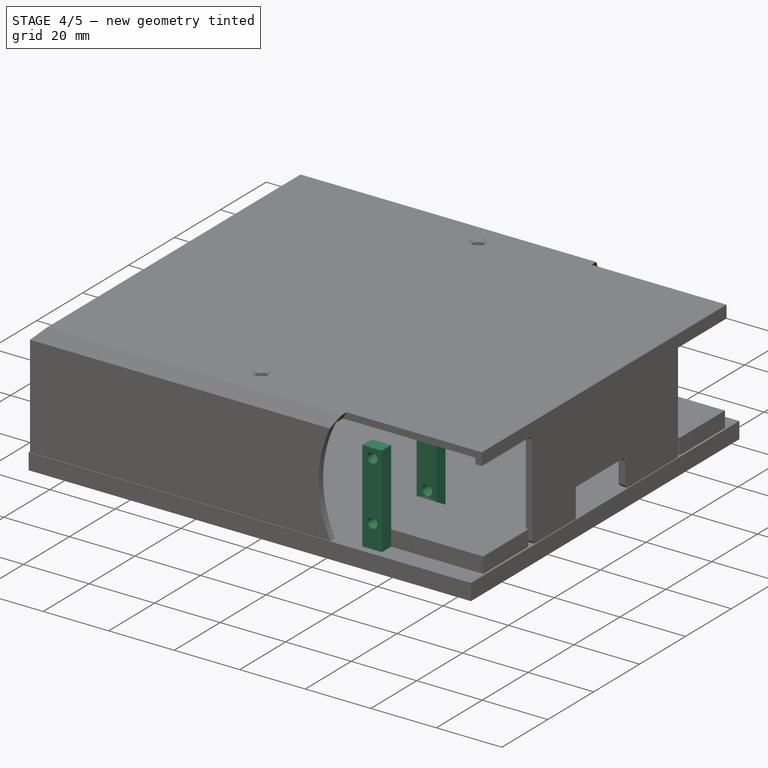
[diagram: stage 4 of 5 — iso view after this stage's code; geometry added in this stage tinted green]
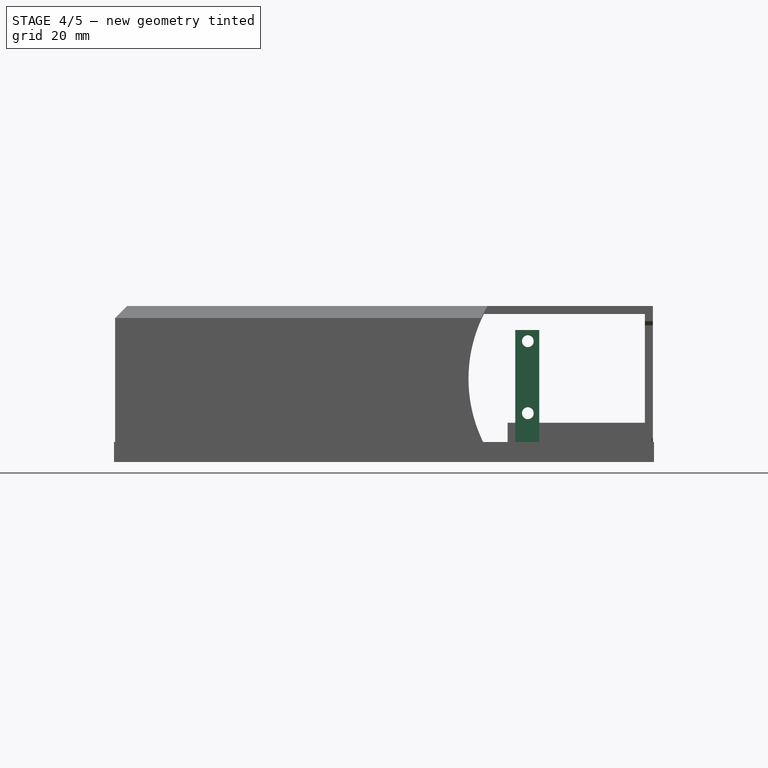
[diagram: stage 4 of 5 — front view after this stage's code; geometry added in this stage tinted green]
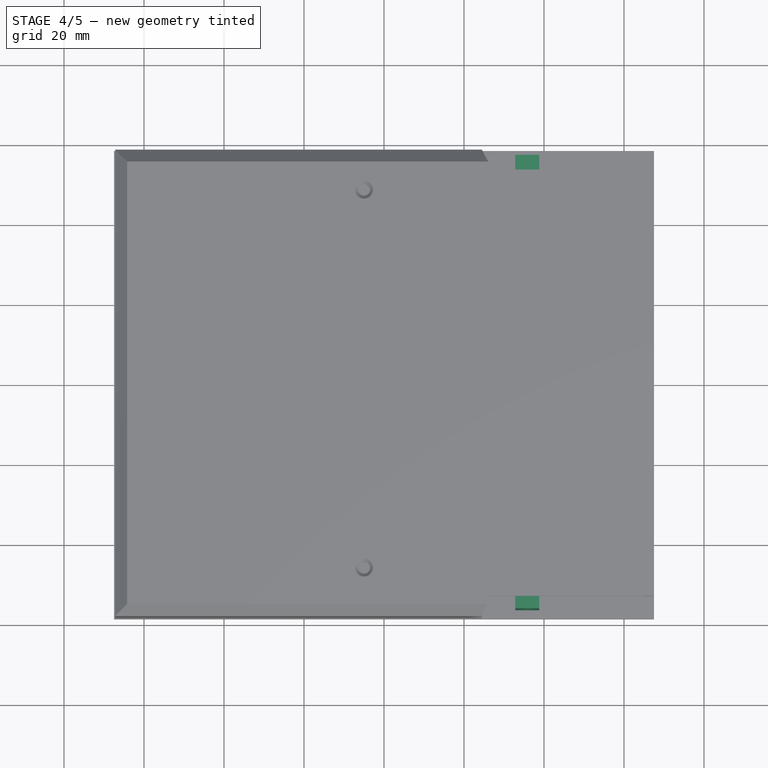
[diagram: stage 4 of 5 — top view after this stage's code; geometry added in this stage tinted green]
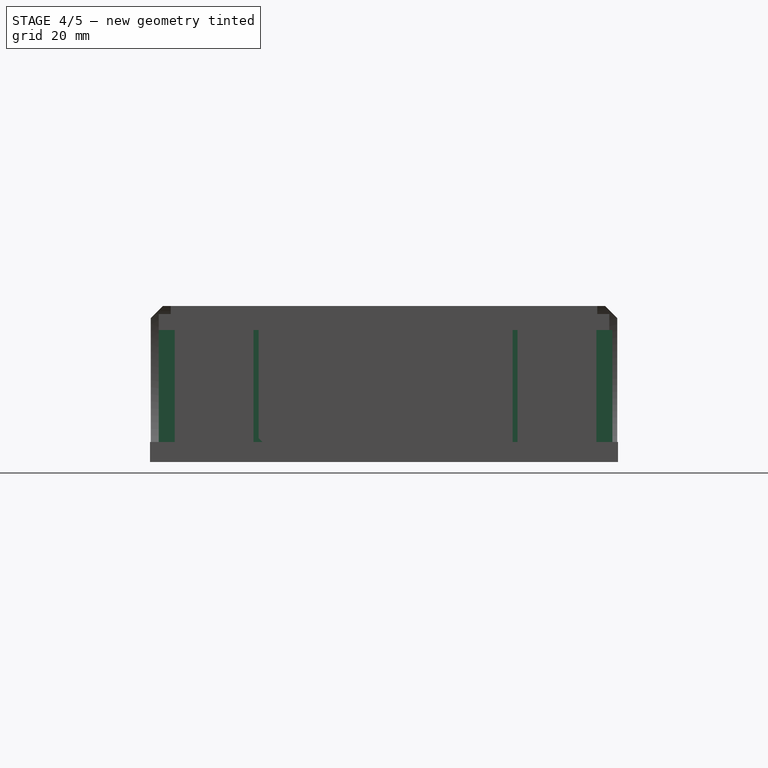
[diagram: stage 4 of 5 — right view after this stage's code; geometry added in this stage tinted green]
FEATURE [Sketcher::SketchObject] Sketch002
  FullyConstrained = true
  MapMode = 5
  Placement = pos=(0,-52.32,0) rot=(1,0,0;1.5708rad)
  Support = -> [Pad001]
  sketch-geometry (6):
    g0: LineSegment StartX=32.8 StartY=28 StartZ=0 EndX=38.8 EndY=28 EndZ=0
    g1: LineSegment StartX=38.8 StartY=28 StartZ=0 EndX=38.8 EndY=0 EndZ=0
    g2: LineSegment StartX=38.8 StartY=0 StartZ=0 EndX=32.8 EndY=0 EndZ=0
    g3: LineSegment StartX=32.8 StartY=0 StartZ=0 EndX=32.8 EndY=28 EndZ=0
    g4: Circle CenterX=35.92 CenterY=25.2 CenterZ=0 NormalX=0 NormalY=0 NormalZ=1 AngleXU=0 Radius=1.5
    g5: Circle CenterX=35.92 CenterY=7.2 CenterZ=0 NormalX=0 NormalY=0 NormalZ=1 AngleXU=0 Radius=1.5
  constraints (18):
    c: Coincident(g0,g1)
    c: Coincident(g1,g2)
    c: Coincident(g2,g3)
    c: Coincident(g3,g0)
    c: Horizontal(g0)
    c: Horizontal(g2)
    c: Vertical(g1)
    c: Vertical(g3)
    c: PointOnObject(g1,g-1)
    c: DistanceX(g0,g0) = 6
    c: DistanceY(g1,g1) = 28
    c: DistanceY(g5,g4) = 18
    c: DistanceX(g4,g0) = 2.88
    c: DistanceY(g4,g0) = 2.8
    c: Diameter(g4) = 3
    c: Equal(g5,g4)
    c: Vertical(g4,g5)
    c: DistanceX(g-1,g2) = 32.8
FEATURE [PartDesign::Pad] Pad002
  BaseFeature = -> Pad001
  Direction = (0,-1,2e-16)
  Length = 4
  Length2 = 10
  Profile = -> Sketch002
  ReferenceAxis = -> Sketch002 [N_Axis]
  Type = 0
FEATURE [Sketcher::SketchObject] Sketch003
  FullyConstrained = true
  MapMode = 5
  Placement = pos=(0,-32.62,0) rot=(0,0.707107,0.707107;3.14159rad)
  Support = -> [Pad002]
  sketch-geometry (6):
    g0: LineSegment StartX=-38.8 StartY=0 StartZ=0 EndX=-32.8 EndY=0 EndZ=0
    g1: LineSegment StartX=-32.8 StartY=0 StartZ=0 EndX=-32.8 EndY=28 EndZ=0
    g2: LineSegment StartX=-32.8 StartY=28 StartZ=0 EndX=-38.8 EndY=28 EndZ=0
    g3: LineSegment StartX=-38.8 StartY=28 StartZ=0 EndX=-38.8 EndY=0 EndZ=0
    g4: Circle CenterX=-36 CenterY=25.2 CenterZ=0 NormalX=0 NormalY=0 NormalZ=1 AngleXU=0 Radius=1.5
    g5: Circle CenterX=-36 CenterY=7.2 CenterZ=0 NormalX=0 NormalY=0 NormalZ=1 AngleXU=0 Radius=1.5
  constraints (18):
    c: Coincident(g0,g1)
    c: Coincident(g1,g2)
    c: Coincident(g2,g3)
    c: Coincident(g3,g0)
    c: Horizontal(g0)
    c: Horizontal(g2)
    c: Vertical(g1)
    c: Vertical(g3)
    c: PointOnObject(g0,g-1)
    c: DistanceY(g3,g3) = 28
    c: DistanceX(g2,g2) = 6
    c: DistanceY(g5,g4) = 18
    c: Diameter(g4) = 3
    c: Equal(g4,g5)
    c: DistanceX(g2,g4) = 2.8
    c: DistanceY(g4,g2) = 2.8
    c: Vertical(g4,g5)
    c: DistanceX(g0,g-1) = 32.8
FEATURE [PartDesign::Pad] Pad003
  BaseFeature = -> Pad002
  Direction = (0,1,-2e-16)
  Length = 4
  Length2 = 10
  Profile = -> Sketch003
  ReferenceAxis = -> Sketch003 [N_Axis]
  Type = 0
FEATURE [Sketcher::SketchObject] Sketch004
  FullyConstrained = true
  MapMode = 5
  Placement = pos=(0,33.38,0) rot=(1,0,0;1.5708rad)
  Support = -> [Pad003]
  sketch-geometry (6):
    g0: LineSegment StartX=32.8 StartY=28 StartZ=0 EndX=38.8 EndY=28 EndZ=0
    g1: LineSegment StartX=38.8 StartY=28 StartZ=0 EndX=38.8 EndY=0 EndZ=0
    g2: LineSegment StartX=38.8 StartY=0 StartZ=0 EndX=32.8 EndY=0 EndZ=0
    g3: LineSegment StartX=32.8 StartY=0 StartZ=0 EndX=32.8 EndY=28 EndZ=0
    g4: Circle CenterX=36 CenterY=25.2 CenterZ=0 NormalX=0 NormalY=0 NormalZ=1 AngleXU=0 Radius=1.5
    g5: Circle CenterX=36 CenterY=7.2 CenterZ=0 NormalX=0 NormalY=0 NormalZ=1 AngleXU=0 Radius=1.5
  constraints (18):
    c: Coincident(g0,g1)
    c: Coincident(g1,g2)
    c: Coincident(g2,g3)
    c: Coincident(g3,g0)
    c: Horizontal(g0)
    c: Horizontal(g2)
    c: Vertical(g1)
    c: Vertical(g3)
    c: PointOnObject(g1,g-1)
    c: Vertical(g4,g5)
    c: DistanceX(g0,g0) = 6
    c: DistanceY(g3,g3) = 28
    c: DistanceX(g4,g0) = 2.8
    c: Equal(g5,g4)
    c: Diameter(g4) = 3
    c: DistanceY(g4,g0) = 2.8
    c: DistanceY(g5,g4) = 18
    c: DistanceX(g-1,g2) = 32.8
FEATURE [PartDesign::Pad] Pad004
  BaseFeature = -> Pad003
  Direction = (0,-1,2e-16)
  Length = 4
  Length2 = 10
  Profile = -> Sketch004
  ReferenceAxis = -> Sketch004 [N_Axis]
  Type = 0
FEATURE [Sketcher::SketchObject] Sketch005
  FullyConstrained = true
  MapMode = 5
  Placement = pos=(0,53.08,0) rot=(0,0.707107,0.707107;3.14159rad)
  Support = -> [Pad004]
  sketch-geometry (6):
    g0: LineSegment StartX=-32.8 StartY=0 StartZ=0 EndX=-38.8 EndY=0 EndZ=0
    g1: LineSegment StartX=-38.8 StartY=0 StartZ=0 EndX=-38.8 EndY=28 EndZ=0
    g2: LineSegment StartX=-38.8 StartY=28 StartZ=0 EndX=-32.8 EndY=28 EndZ=0
    g3: LineSegment StartX=-32.8 StartY=28 StartZ=0 EndX=-32.8 EndY=0 EndZ=0
    g4: Circle CenterX=-36 CenterY=25.2 CenterZ=0 NormalX=0 NormalY=0 NormalZ=1 AngleXU=0 Radius=1.5
    g5: Circle CenterX=-36 CenterY=7.2 CenterZ=0 NormalX=0 NormalY=0 NormalZ=1 AngleXU=0 Radius=1.5
  constraints (18):
    c: Coincident(g0,g1)
    c: Coincident(g1,g2)
    c: Coincident(g2,g3)
    c: Coincident(g3,g0)
    c: Horizontal(g0)
    c: Horizontal(g2)
    c: Vertical(g1)
    c: Vertical(g3)
    c: PointOnObject(g0,g-1)
    c: DistanceX(g2,g2) = 6
    c: Vertical(g5,g4)
    c: DistanceY(g4,g2) = 2.8
    c: Diameter(g4) = 3
    c: Equal(g4,g5)
    c: DistanceY(g5,g4) = 18
    c: DistanceY(g3,g3) = 28
    c: DistanceX(g0,g-1) = 32.8
    c: DistanceX(g1,g4) = 2.8
FEATURE [PartDesign::Pad] Pad005
  BaseFeature = -> Pad004
  Direction = (0,1,-2e-16)
  Length = 4
  Length2 = 10
  Profile = -> Sketch005
  ReferenceAxis = -> Sketch005 [N_Axis]
  Type = 0
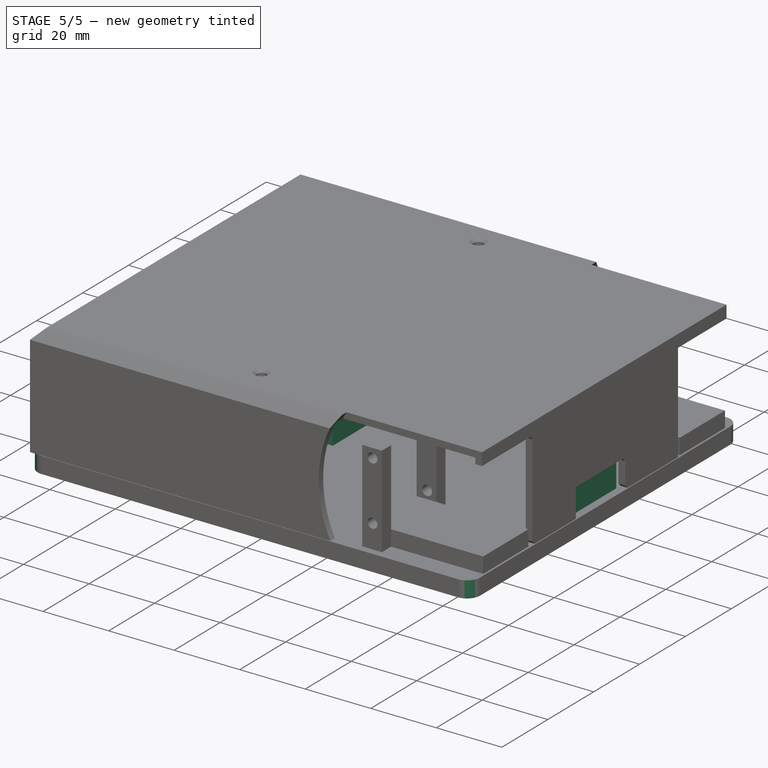
[diagram: stage 5 of 5 — iso view after this stage's code; geometry added in this stage tinted green]
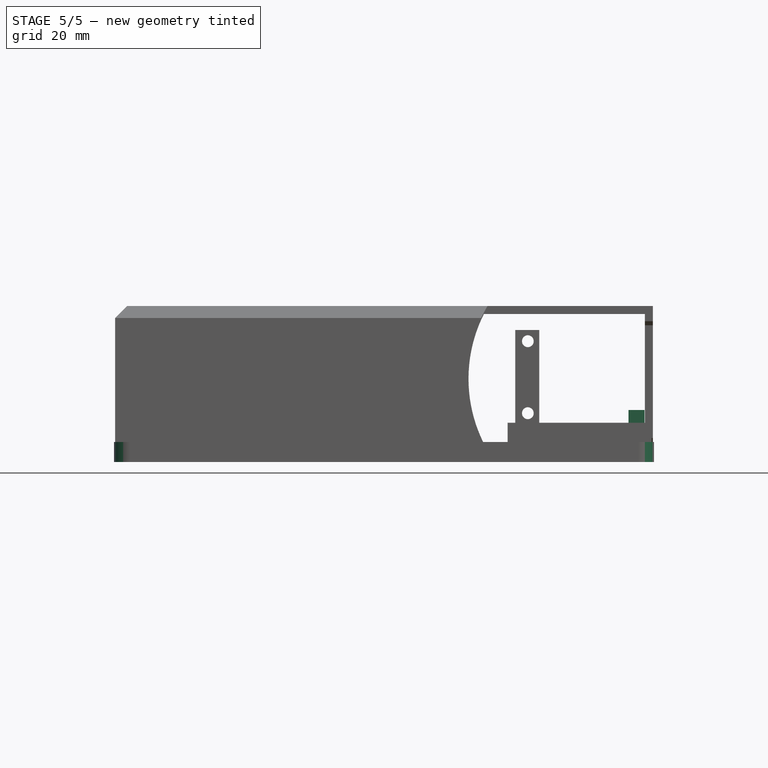
[diagram: stage 5 of 5 — front view after this stage's code; geometry added in this stage tinted green]
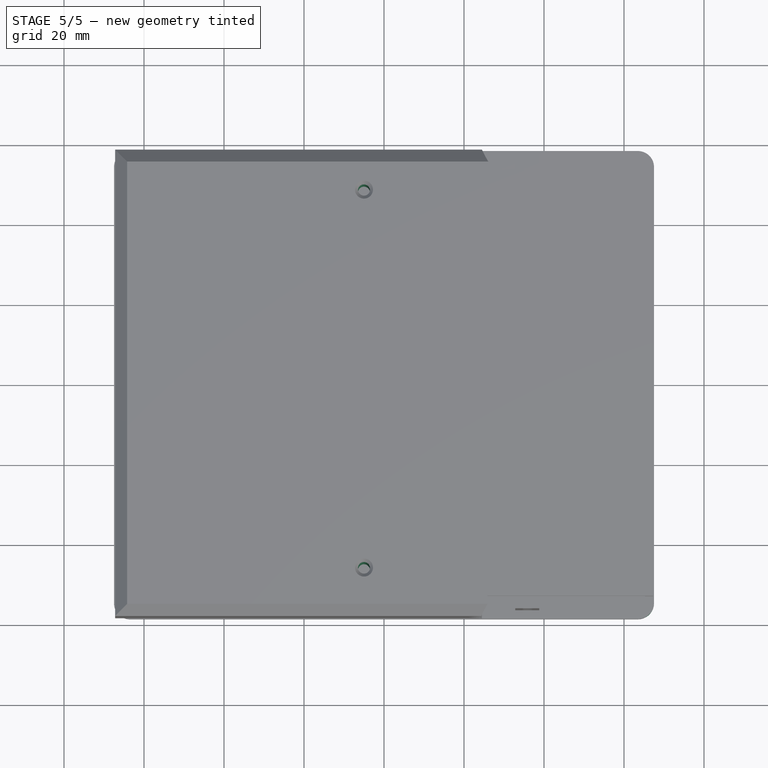
[diagram: stage 5 of 5 — top view after this stage's code; geometry added in this stage tinted green]
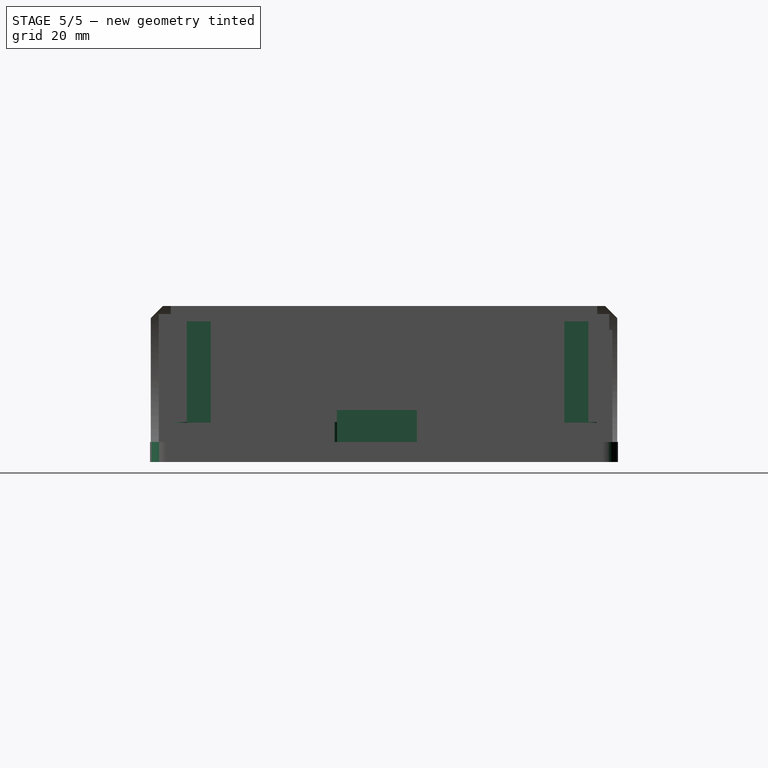
[diagram: stage 5 of 5 — right view after this stage's code; geometry added in this stage tinted green]
FEATURE [Sketcher::SketchObject] Sketch006
  FullyConstrained = false
  MapMode = 5
  Support = -> [Pad005]
  sketch-geometry (16):
    g0: Circle CenterX=-11.6052 CenterY=51.6062 CenterZ=0 NormalX=0 NormalY=0 NormalZ=1 AngleXU=0 Radius=1.65
    g1: Circle CenterX=-11.6052 CenterY=51.6062 CenterZ=0 NormalX=0 NormalY=0 NormalZ=1 AngleXU=0 Radius=2.5
    g2: Circle CenterX=-58.7346 CenterY=51.6062 CenterZ=0 NormalX=0 NormalY=0 NormalZ=1 AngleXU=0 Radius=1.65
    g3: Circle CenterX=-58.7346 CenterY=51.6062 CenterZ=0 NormalX=0 NormalY=0 NormalZ=1 AngleXU=0 Radius=2.5
    g4: Circle CenterX=-58.7346 CenterY=28.1062 CenterZ=0 NormalX=0 NormalY=0 NormalZ=1 AngleXU=0 Radius=2.5
    g5: Circle CenterX=-58.7346 CenterY=28.1062 CenterZ=0 NormalX=0 NormalY=0 NormalZ=1 AngleXU=0 Radius=1.65
    g6: Circle CenterX=-11.6052 CenterY=28.1062 CenterZ=0 NormalX=0 NormalY=0 NormalZ=1 AngleXU=0 Radius=1.65
    g7: Circle CenterX=-11.6052 CenterY=28.1062 CenterZ=0 NormalX=0 NormalY=0 NormalZ=1 AngleXU=0 Radius=2.5
    g8: Circle CenterX=-19.2595 CenterY=-13.3359 CenterZ=0 NormalX=0 NormalY=0 NormalZ=1 AngleXU=0 Radius=1.65
    g9: Circle CenterX=-19.2595 CenterY=-13.3359 CenterZ=0 NormalX=0 NormalY=0 NormalZ=1 AngleXU=0 Radius=2.5
    g10: Circle CenterX=-56.7595 CenterY=-13.3359 CenterZ=0 NormalX=0 NormalY=0 NormalZ=1 AngleXU=0 Radius=1.65
    g11: Circle CenterX=-56.7595 CenterY=-13.3359 CenterZ=0 NormalX=0 NormalY=0 NormalZ=1 AngleXU=0 Radius=2.5
    g12: Circle CenterX=-56.7595 CenterY=-50.8359 CenterZ=0 NormalX=0 NormalY=0 NormalZ=1 AngleXU=0 Radius=1.65
    g13: Circle CenterX=-56.7595 CenterY=-50.8359 CenterZ=0 NormalX=0 NormalY=0 NormalZ=1 AngleXU=0 Radius=2.5
    g14: Circle CenterX=-19.2595 CenterY=-50.8359 CenterZ=0 NormalX=0 NormalY=0 NormalZ=1 AngleXU=0 Radius=1.65
    g15: Circle CenterX=-19.2595 CenterY=-50.8359 CenterZ=0 NormalX=0 NormalY=0 NormalZ=1 AngleXU=0 Radius=2.5
  constraints (25):
    c: Coincident(g1,g0)
    c: Diameter(g0) = 3.3
    c: Diameter(g1) = 5
    c: Coincident(g3,g2)
    c: Equal(g0,g2) = 3.3
    c: Equal(g1,g3) = 5
    c: Coincident(g4,g5)
    c: Coincident(g7,g6)
    c: Equal(g0,g6) = 3.3
    c: Equal(g1,g7) = 5
    c: Coincident(g9,g8)
    c: Coincident(g11,g10)
    c: Coincident(g13,g12)
    c: Coincident(g15,g14)
    c: Vertical(g2,g4)
    c: Vertical(g6,g0)
    c: Horizontal(g0,g2)
    c: Horizontal(g4,g6)
    c: DistanceY(g4,g2) = 23.5
    c: Vertical(g12,g10)
    c: Vertical(g8,g14)
    c: Horizontal(g8,g10)
    c: Horizontal(g12,g14)
    c: DistanceY(g12,g10) = 37.5
    c: DistanceX(g12,g14) = 37.5
FEATURE [PartDesign::Pad] Pad006
  BaseFeature = -> Pad005
  Direction = (0,0,1)
  Length = 5
  Length2 = 10
  Profile = -> Sketch006
  ReferenceAxis = -> Sketch006 [N_Axis]
  Type = 0
FEATURE [Sketcher::SketchObject] Sketch007
  FullyConstrained = true
  MapMode = 5
  Support = -> [Pad006]
  sketch-geometry (8):
    g0: LineSegment StartX=65.12 StartY=8.23 StartZ=0 EndX=61.12 EndY=8.23 EndZ=0
    g1: LineSegment StartX=61.12 StartY=8.23 StartZ=0 EndX=61.12 EndY=-11.77 EndZ=0
    g2: LineSegment StartX=61.12 StartY=-11.77 StartZ=0 EndX=65.12 EndY=-11.77 EndZ=0
    g3: LineSegment StartX=65.12 StartY=-11.77 StartZ=0 EndX=65.12 EndY=8.23 EndZ=0
    g4: LineSegment StartX=-11.38 StartY=8.23 StartZ=0 EndX=-7.38 EndY=8.23 EndZ=0
    g5: LineSegment StartX=-7.38 StartY=8.23 StartZ=0 EndX=-7.38 EndY=-11.77 EndZ=0
    g6: LineSegment StartX=-7.38 StartY=-11.77 StartZ=0 EndX=-11.38 EndY=-11.77 EndZ=0
    g7: LineSegment StartX=-11.38 StartY=-11.77 StartZ=0 EndX=-11.38 EndY=8.23 EndZ=0
  constraints (24):
    c: Coincident(g0,g1)
    c: Coincident(g1,g2)
    c: Coincident(g2,g3)
    c: Coincident(g3,g0)
    c: Horizontal(g0)
    c: Horizontal(g2)
    c: Vertical(g1)
    c: Vertical(g3)
    c: Coincident(g4,g5)
    c: Coincident(g5,g6)
    c: Coincident(g6,g7)
    c: Coincident(g7,g4)
    c: Horizontal(g4)
    c: Horizontal(g6)
    c: Vertical(g5)
    c: Vertical(g7)
    c: DistanceX(g0,g0) = 4
    c: DistanceY(g3,g3) = 20
    c: Equal(g3,g5)
    c: Equal(g0,g4)
    c: Horizontal(g1,g5)
    c: DistanceY(g2,g-1) = 11.77
    c: DistanceX(g-1,g1) = 61.12
    c: DistanceX(g4,g0) = 68.5
FEATURE [PartDesign::Pad] Pad007
  BaseFeature = -> Pad006
  Direction = (0,0,1)
  Length = 8
  Length2 = 10
  Profile = -> Sketch007
  ReferenceAxis = -> Sketch007 [N_Axis]
  Type = 0
FEATURE [Sketcher::SketchObject] Sketch009
  FullyConstrained = false
  MapMode = 5
  Support = -> [Pad007]
  sketch-geometry (10):
    g0: LineSegment StartX=-8 StartY=51.0932 StartZ=0 EndX=-2 EndY=51.0932 EndZ=0
    g1: LineSegment StartX=-2 StartY=51.0932 StartZ=0 EndX=-2 EndY=45.0932 EndZ=0
    g2: LineSegment StartX=-2 StartY=45.0932 StartZ=0 EndX=-8 EndY=45.0932 EndZ=0
    g3: LineSegment StartX=-8 StartY=45.0932 StartZ=0 EndX=-8 EndY=51.0932 EndZ=0
    g4: Circle CenterX=-5 CenterY=48.0932 CenterZ=0 NormalX=0 NormalY=0 NormalZ=1 AngleXU=0 Radius=1.5
    g5: LineSegment StartX=-8 StartY=-43.3196 StartZ=0 EndX=-2 EndY=-43.3196 EndZ=0
    g6: LineSegment StartX=-2 StartY=-43.3196 StartZ=0 EndX=-2 EndY=-49.3196 EndZ=0
    g7: LineSegment StartX=-2 StartY=-49.3196 StartZ=0 EndX=-8 EndY=-49.3196 EndZ=0
    g8: LineSegment StartX=-8 StartY=-49.3196 StartZ=0 EndX=-8 EndY=-43.3196 EndZ=0
    g9: Circle CenterX=-5 CenterY=-46.3196 CenterZ=0 NormalX=0 NormalY=0 NormalZ=1 AngleXU=0 Radius=1.5
  constraints (26):
    c: Coincident(g0,g1)
    c: Coincident(g1,g2)
    c: Coincident(g2,g3)
    c: Coincident(g3,g0)
    c: Horizontal(g0)
    c: Horizontal(g2)
    c: Vertical(g1)
    c: Vertical(g3)
    c: Diameter(g4) = 3
    c: DistanceX(g2,g2) = 6
    c: DistanceY(g1,g1) = 6
    c: Symmetric(g2,g0,g4)
    c: Coincident(g5,g6)
    c: Coincident(g6,g7)
    c: Coincident(g7,g8)
    c: Coincident(g8,g5)
    c: Horizontal(g5)
    c: Horizontal(g7)
    c: Vertical(g6)
    c: Vertical(g8)
    c: Equal(g4,g9) = 3
    c: Equal(g2,g7) = 5
    c: Equal(g1,g6) = 5
    c: Symmetric(g7,g5,g9)
    c: Vertical(g9,g4)
    c: DistanceX(g9,g-1) = 5
FEATURE [PartDesign::Pad] Pad009
  BaseFeature = -> Pad007
  Direction = (0,0,1)
  Length = 32
  Length2 = 10
  Profile = -> Sketch009
  ReferenceAxis = -> Sketch009 [N_Axis]
  Type = 0
FEATURE [PartDesign::Fillet] Fillet
  Base = -> Pad009 [Edge5,Edge1,Edge8,Edge2]
  BaseFeature = -> Pad009
  Radius = 4
  SupportTransform = false
  UseAllEdges = false
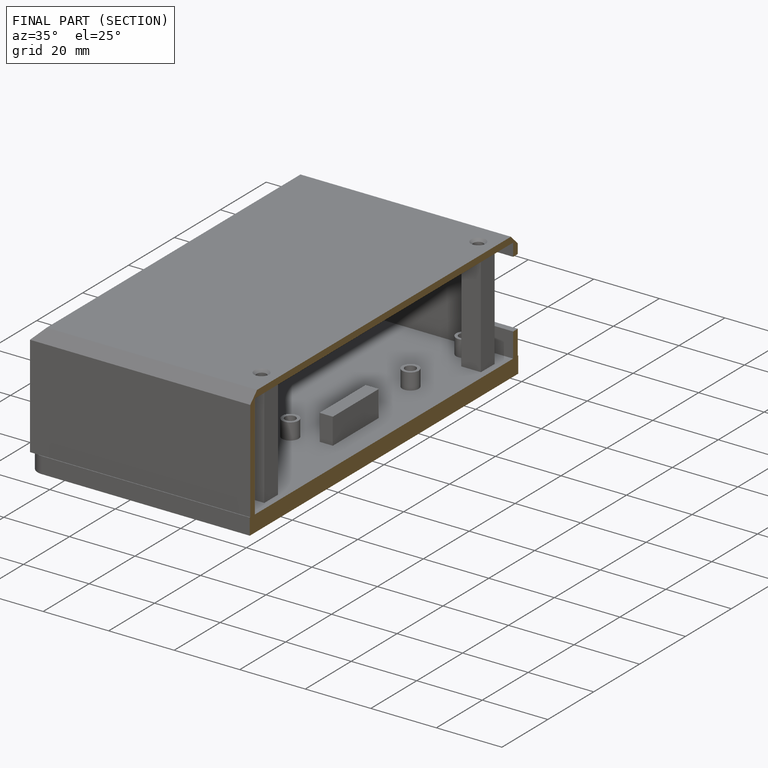
[diagram: finished part — half-section view (interior)]
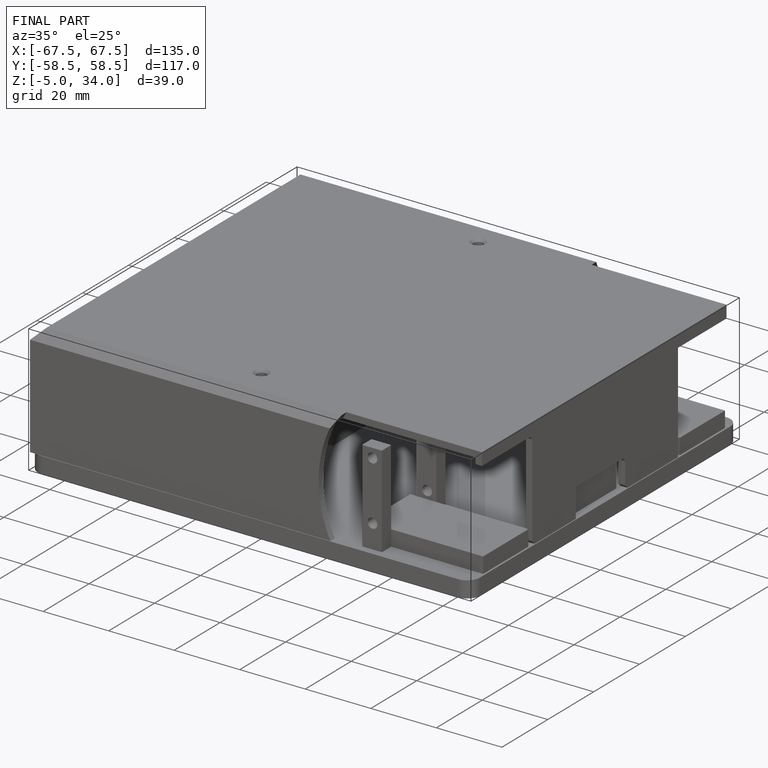
[diagram: finished part — iso view with bounding-box wireframe]
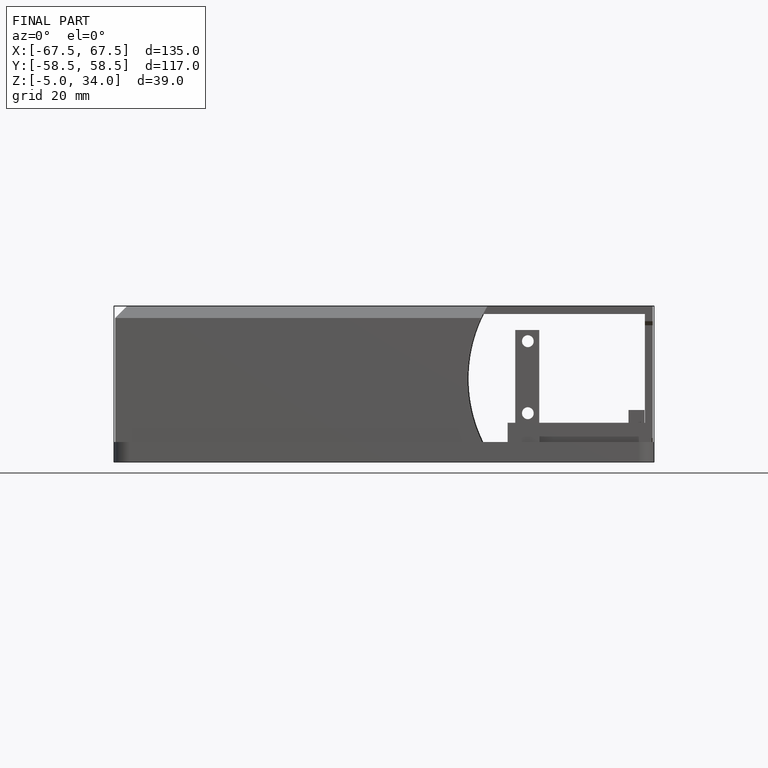
[diagram: finished part — front view with bounding-box wireframe]
